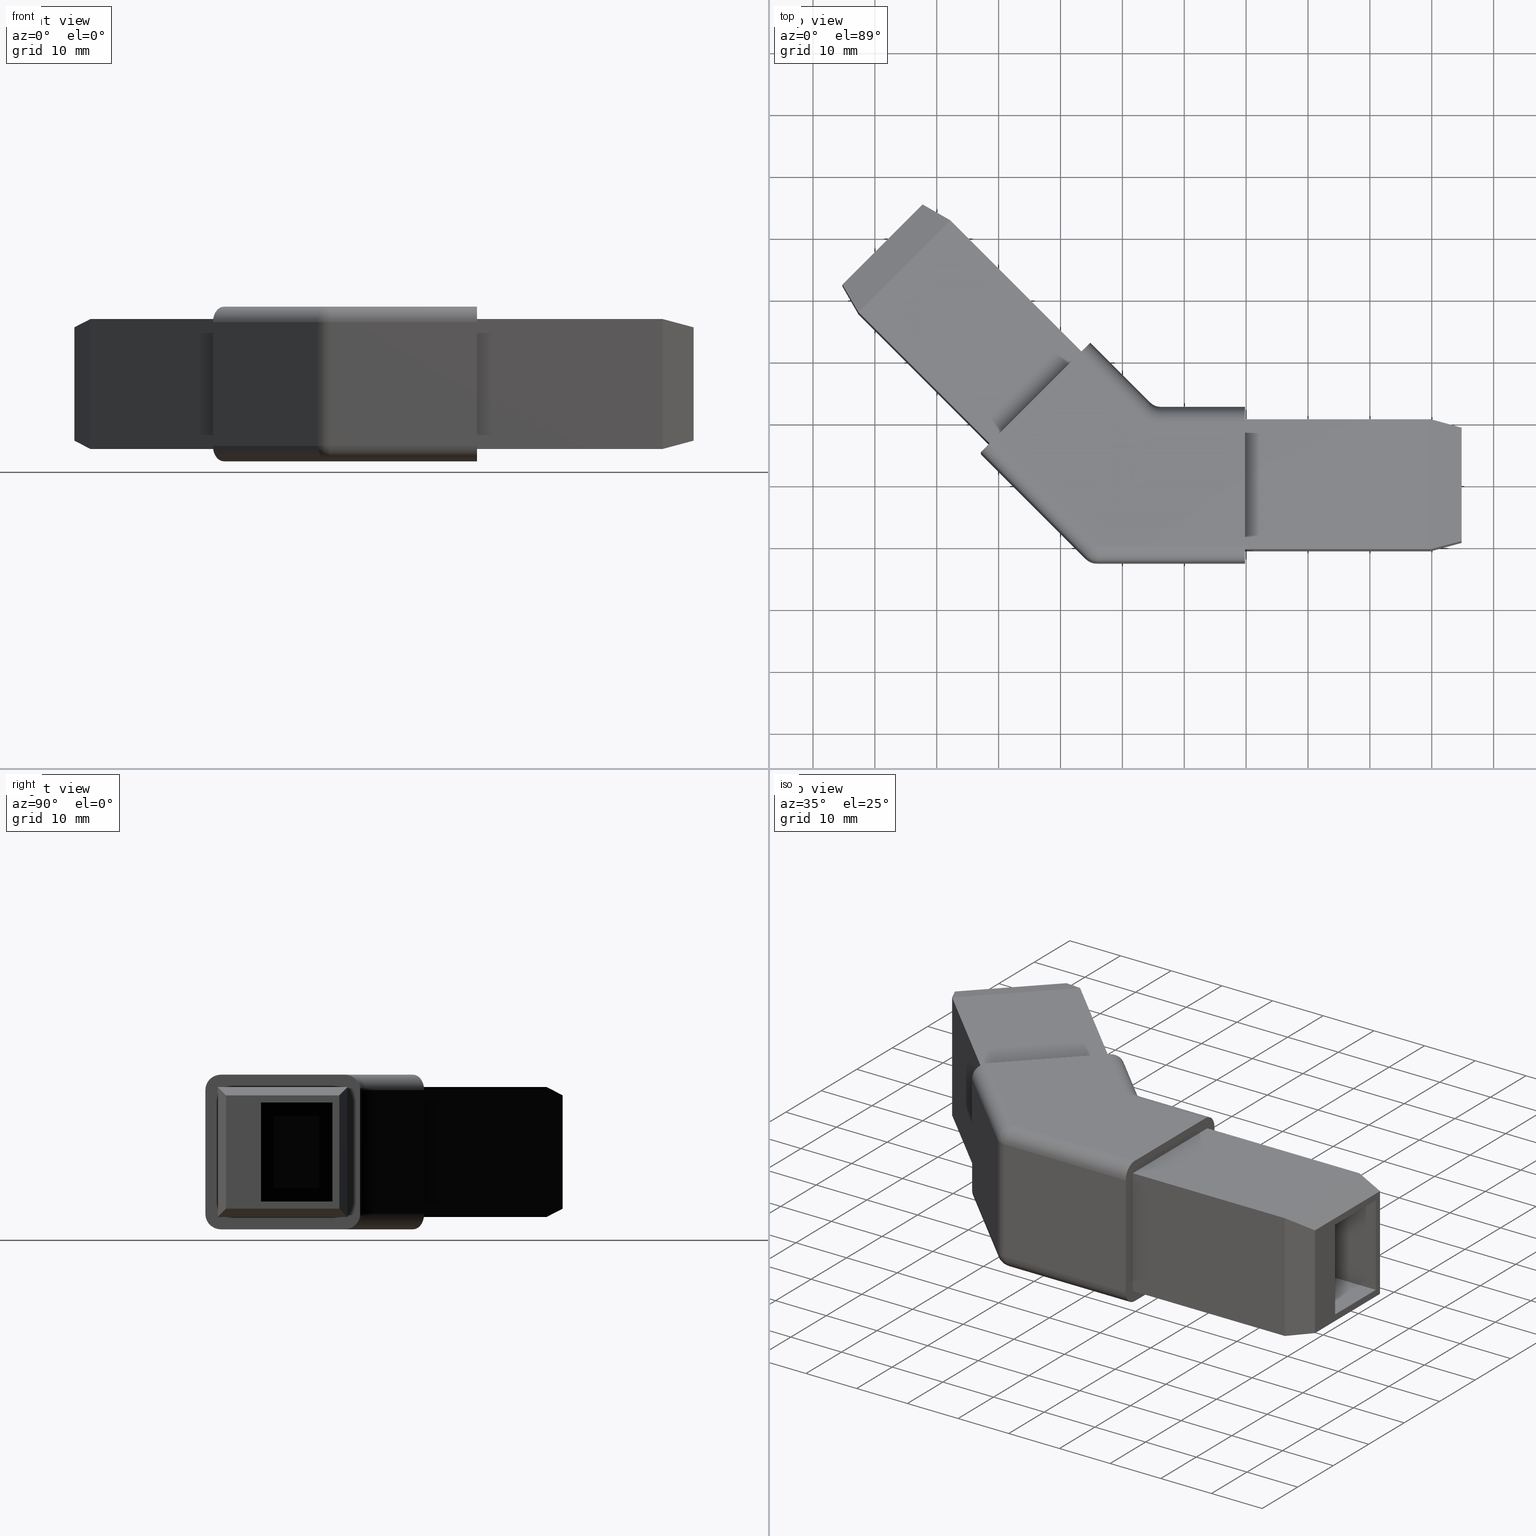
[diagram: canonical four-view strip — front | top / right | iso, engineering-drawing reading convention]
A machine part, canonical four-view strip (front | top / right | iso — engineering-drawing reading convention). The complete STEP part file that produces these views, byte-faithful:
ISO-10303-21;
HEADER;
/* Generated by software containing ST-Developer
 * from STEP Tools, Inc. (www.steptools.com) 
 */

FILE_DESCRIPTION(
/* description */ ('GIUNZ. Q25-2VA.45\X\B0 NYLON R.7039 S/RINF.'),
/* implementation_level */ '2;1');

FILE_NAME(
/* name */ 
'Q:\\Catalogo\\3_Profili e accessori MACAP\\Per Download Web e catalog
o artaceo\\ACCESSORI 25\\PAGINA 23\\DGIPD0000010-XF30506G.stp',
/* time_stamp */ '2019-11-19T11:12:06+01:00',
/* author */ ('fzagni'),
/* organization */ (''),
/* preprocessor_version */ 'ST-DEVELOPER v17.2',
/* originating_system */ 'Autodesk Inventor 2019',
/* authorisation */ '');

FILE_SCHEMA (('AUTOMOTIVE_DESIGN { 1 0 10303 214 3 1 1 }'));
ENDSEC;

DATA;
#10=MECHANICAL_DESIGN_GEOMETRIC_PRESENTATION_REPRESENTATION('',(#13),#1375);
#11=SHAPE_REPRESENTATION_RELATIONSHIP('SRR','None',#1382,#12);
#12=ADVANCED_BREP_SHAPE_REPRESENTATION('',(#14),#1374);
#13=STYLED_ITEM('',(#1391),#14);
#14=MANIFOLD_SOLID_BREP('Solido1',#821);
#15=SPHERICAL_SURFACE('',#891,2.5);
#16=SPHERICAL_SURFACE('',#902,2.5);
#17=CYLINDRICAL_SURFACE('',#869,2.5);
#18=CYLINDRICAL_SURFACE('',#876,2.5);
#19=CYLINDRICAL_SURFACE('',#877,2.5);
#20=CYLINDRICAL_SURFACE('',#879,2.5);
#21=CYLINDRICAL_SURFACE('',#881,2.5);
#22=CYLINDRICAL_SURFACE('',#885,2.5);
#23=CYLINDRICAL_SURFACE('',#888,2.5);
#24=CYLINDRICAL_SURFACE('',#897,2.5);
#25=CYLINDRICAL_SURFACE('',#899,2.5);
#26=CYLINDRICAL_SURFACE('',#909,2.5);
#27=CIRCLE('',#865,5.);
#28=CIRCLE('',#866,2.5);
#29=CIRCLE('',#867,2.5);
#30=CIRCLE('',#868,2.5);
#31=CIRCLE('',#870,2.5);
#32=CIRCLE('',#872,2.5);
#33=CIRCLE('',#873,2.5);
#34=CIRCLE('',#874,2.5);
#35=CIRCLE('',#875,5.);
#36=CIRCLE('',#878,2.5);
#37=CIRCLE('',#880,2.5);
#38=CIRCLE('',#882,2.5);
#39=CIRCLE('',#886,2.5);
#40=CIRCLE('',#887,2.5);
#41=CIRCLE('',#889,2.5);
#42=CIRCLE('',#890,2.5);
#43=CIRCLE('',#892,2.5);
#44=CIRCLE('',#895,2.5);
#45=CIRCLE('',#898,2.5);
#46=CIRCLE('',#900,2.5);
#47=CIRCLE('',#901,2.5);
#48=CIRCLE('',#903,2.5);
#49=TOROIDAL_SURFACE('',#864,5.,2.5);
#50=TOROIDAL_SURFACE('',#871,5.,2.5);
#51=FACE_BOUND('',#113,.T.);
#52=FACE_BOUND('',#123,.T.);
#53=FACE_BOUND('',#142,.T.);
#54=FACE_BOUND('',#148,.T.);
#55=FACE_OUTER_BOUND('',#103,.T.);
#56=FACE_OUTER_BOUND('',#104,.T.);
#57=FACE_OUTER_BOUND('',#105,.T.);
#58=FACE_OUTER_BOUND('',#106,.T.);
#59=FACE_OUTER_BOUND('',#107,.T.);
#60=FACE_OUTER_BOUND('',#108,.T.);
#61=FACE_OUTER_BOUND('',#109,.T.);
#62=FACE_OUTER_BOUND('',#110,.T.);
#63=FACE_OUTER_BOUND('',#111,.T.);
#64=FACE_OUTER_BOUND('',#112,.T.);
#65=FACE_OUTER_BOUND('',#114,.T.);
#66=FACE_OUTER_BOUND('',#115,.T.);
#67=FACE_OUTER_BOUND('',#116,.T.);
#68=FACE_OUTER_BOUND('',#117,.T.);
#69=FACE_OUTER_BOUND('',#118,.T.);
#70=FACE_OUTER_BOUND('',#119,.T.);
#71=FACE_OUTER_BOUND('',#120,.T.);
#72=FACE_OUTER_BOUND('',#121,.T.);
#73=FACE_OUTER_BOUND('',#122,.T.);
#74=FACE_OUTER_BOUND('',#124,.T.);
#75=FACE_OUTER_BOUND('',#125,.T.);
#76=FACE_OUTER_BOUND('',#126,.T.);
#77=FACE_OUTER_BOUND('',#127,.T.);
#78=FACE_OUTER_BOUND('',#128,.T.);
#79=FACE_OUTER_BOUND('',#129,.T.);
#80=FACE_OUTER_BOUND('',#130,.T.);
#81=FACE_OUTER_BOUND('',#131,.T.);
#82=FACE_OUTER_BOUND('',#132,.T.);
#83=FACE_OUTER_BOUND('',#133,.T.);
#84=FACE_OUTER_BOUND('',#134,.T.);
#85=FACE_OUTER_BOUND('',#135,.T.);
#86=FACE_OUTER_BOUND('',#136,.T.);
#87=FACE_OUTER_BOUND('',#137,.T.);
#88=FACE_OUTER_BOUND('',#138,.T.);
#89=FACE_OUTER_BOUND('',#139,.T.);
#90=FACE_OUTER_BOUND('',#140,.T.);
#91=FACE_OUTER_BOUND('',#141,.T.);
#92=FACE_OUTER_BOUND('',#143,.T.);
#93=FACE_OUTER_BOUND('',#144,.T.);
#94=FACE_OUTER_BOUND('',#145,.T.);
#95=FACE_OUTER_BOUND('',#146,.T.);
#96=FACE_OUTER_BOUND('',#147,.T.);
#97=FACE_OUTER_BOUND('',#149,.T.);
#98=FACE_OUTER_BOUND('',#150,.T.);
#99=FACE_OUTER_BOUND('',#151,.T.);
#100=FACE_OUTER_BOUND('',#152,.T.);
#101=FACE_OUTER_BOUND('',#153,.T.);
#102=FACE_OUTER_BOUND('',#154,.T.);
#103=EDGE_LOOP('',(#515,#516,#517,#518));
#104=EDGE_LOOP('',(#519,#520,#521,#522,#523));
#105=EDGE_LOOP('',(#524,#525,#526,#527));
#106=EDGE_LOOP('',(#528,#529,#530,#531,#532));
#107=EDGE_LOOP('',(#533,#534,#535,#536,#537,#538));
#108=EDGE_LOOP('',(#539,#540,#541,#542));
#109=EDGE_LOOP('',(#543,#544,#545,#546));
#110=EDGE_LOOP('',(#547,#548,#549,#550));
#111=EDGE_LOOP('',(#551,#552,#553,#554));
#112=EDGE_LOOP('',(#555,#556,#557,#558));
#113=EDGE_LOOP('',(#559,#560,#561,#562));
#114=EDGE_LOOP('',(#563,#564,#565,#566));
#115=EDGE_LOOP('',(#567,#568,#569,#570));
#116=EDGE_LOOP('',(#571,#572,#573,#574));
#117=EDGE_LOOP('',(#575,#576,#577,#578));
#118=EDGE_LOOP('',(#579,#580,#581,#582));
#119=EDGE_LOOP('',(#583,#584,#585,#586));
#120=EDGE_LOOP('',(#587,#588,#589,#590));
#121=EDGE_LOOP('',(#591,#592,#593,#594));
#122=EDGE_LOOP('',(#595,#596,#597,#598));
#123=EDGE_LOOP('',(#599,#600,#601,#602));
#124=EDGE_LOOP('',(#603,#604,#605,#606));
#125=EDGE_LOOP('',(#607,#608,#609,#610));
#126=EDGE_LOOP('',(#611,#612,#613,#614));
#127=EDGE_LOOP('',(#615,#616,#617,#618));
#128=EDGE_LOOP('',(#619,#620,#621,#622));
#129=EDGE_LOOP('',(#623,#624,#625,#626));
#130=EDGE_LOOP('',(#627,#628,#629,#630));
#131=EDGE_LOOP('',(#631,#632,#633,#634));
#132=EDGE_LOOP('',(#635,#636,#637,#638));
#133=EDGE_LOOP('',(#639,#640,#641,#642));
#134=EDGE_LOOP('',(#643,#644,#645,#646));
#135=EDGE_LOOP('',(#647,#648,#649,#650));
#136=EDGE_LOOP('',(#651,#652,#653,#654,#655,#656,#657));
#137=EDGE_LOOP('',(#658,#659,#660,#661));
#138=EDGE_LOOP('',(#662,#663,#664,#665));
#139=EDGE_LOOP('',(#666,#667,#668));
#140=EDGE_LOOP('',(#669,#670,#671,#672,#673,#674,#675));
#141=EDGE_LOOP('',(#676,#677,#678,#679,#680,#681,#682,#683));
#142=EDGE_LOOP('',(#684,#685,#686,#687));
#143=EDGE_LOOP('',(#688,#689,#690,#691));
#144=EDGE_LOOP('',(#692,#693,#694,#695));
#145=EDGE_LOOP('',(#696,#697,#698,#699));
#146=EDGE_LOOP('',(#700,#701,#702));
#147=EDGE_LOOP('',(#703,#704,#705,#706,#707,#708,#709,#710));
#148=EDGE_LOOP('',(#711,#712,#713,#714));
#149=EDGE_LOOP('',(#715,#716,#717,#718));
#150=EDGE_LOOP('',(#719,#720,#721,#722));
#151=EDGE_LOOP('',(#723,#724,#725,#726));
#152=EDGE_LOOP('',(#727,#728,#729,#730));
#153=EDGE_LOOP('',(#731,#732,#733,#734));
#154=EDGE_LOOP('',(#735,#736,#737,#738));
#155=LINE('',#1147,#245);
#156=LINE('',#1149,#246);
#157=LINE('',#1151,#247);
#158=LINE('',#1152,#248);
#159=LINE('',#1156,#249);
#160=LINE('',#1158,#250);
#161=LINE('',#1159,#251);
#162=LINE('',#1160,#252);
#163=LINE('',#1163,#253);
#164=LINE('',#1164,#254);
#165=LINE('',#1167,#255);
#166=LINE('',#1169,#256);
#167=LINE('',#1170,#257);
#168=LINE('',#1172,#258);
#169=LINE('',#1174,#259);
#170=LINE('',#1176,#260);
#171=LINE('',#1177,#261);
#172=LINE('',#1181,#262);
#173=LINE('',#1182,#263);
#174=LINE('',#1183,#264);
#175=LINE('',#1185,#265);
#176=LINE('',#1187,#266);
#177=LINE('',#1191,#267);
#178=LINE('',#1193,#268);
#179=LINE('',#1195,#269);
#180=LINE('',#1196,#270);
#181=LINE('',#1199,#271);
#182=LINE('',#1201,#272);
#183=LINE('',#1202,#273);
#184=LINE('',#1205,#274);
#185=LINE('',#1206,#275);
#186=LINE('',#1209,#276);
#187=LINE('',#1210,#277);
#188=LINE('',#1213,#278);
#189=LINE('',#1215,#279);
#190=LINE('',#1216,#280);
#191=LINE('',#1218,#281);
#192=LINE('',#1221,#282);
#193=LINE('',#1222,#283);
#194=LINE('',#1226,#284);
#195=LINE('',#1228,#285);
#196=LINE('',#1230,#286);
#197=LINE('',#1231,#287);
#198=LINE('',#1234,#288);
#199=LINE('',#1236,#289);
#200=LINE('',#1237,#290);
#201=LINE('',#1240,#291);
#202=LINE('',#1242,#292);
#203=LINE('',#1243,#293);
#204=LINE('',#1246,#294);
#205=LINE('',#1247,#295);
#206=LINE('',#1250,#296);
#207=LINE('',#1251,#297);
#208=LINE('',#1254,#298);
#209=LINE('',#1256,#299);
#210=LINE('',#1257,#300);
#211=LINE('',#1259,#301);
#212=LINE('',#1261,#302);
#213=LINE('',#1275,#303);
#214=LINE('',#1276,#304);
#215=LINE('',#1287,#305);
#216=LINE('',#1288,#306);
#217=LINE('',#1293,#307);
#218=LINE('',#1294,#308);
#219=LINE('',#1299,#309);
#220=LINE('',#1300,#310);
#221=LINE('',#1305,#311);
#222=LINE('',#1306,#312);
#223=LINE('',#1308,#313);
#224=LINE('',#1311,#314);
#225=LINE('',#1313,#315);
#226=LINE('',#1315,#316);
#227=LINE('',#1316,#317);
#228=LINE('',#1322,#318);
#229=LINE('',#1325,#319);
#230=LINE('',#1330,#320);
#231=LINE('',#1333,#321);
#232=LINE('',#1337,#322);
#233=LINE('',#1338,#323);
#234=LINE('',#1341,#324);
#235=LINE('',#1343,#325);
#236=LINE('',#1344,#326);
#237=LINE('',#1347,#327);
#238=LINE('',#1348,#328);
#239=LINE('',#1356,#329);
#240=LINE('',#1360,#330);
#241=LINE('',#1362,#331);
#242=LINE('',#1363,#332);
#243=LINE('',#1365,#333);
#244=LINE('',#1367,#334);
#245=VECTOR('',#915,10.);
#246=VECTOR('',#916,10.);
#247=VECTOR('',#917,10.);
#248=VECTOR('',#918,10.);
#249=VECTOR('',#921,10.);
#250=VECTOR('',#922,10.);
#251=VECTOR('',#923,10.);
#252=VECTOR('',#924,10.);
#253=VECTOR('',#927,10.);
#254=VECTOR('',#928,10.);
#255=VECTOR('',#931,10.);
#256=VECTOR('',#932,10.);
#257=VECTOR('',#933,10.);
#258=VECTOR('',#936,10.);
#259=VECTOR('',#937,10.);
#260=VECTOR('',#938,10.);
#261=VECTOR('',#939,10.);
#262=VECTOR('',#942,10.);
#263=VECTOR('',#943,10.);
#264=VECTOR('',#944,10.);
#265=VECTOR('',#947,10.);
#266=VECTOR('',#950,10.);
#267=VECTOR('',#953,10.);
#268=VECTOR('',#954,10.);
#269=VECTOR('',#955,10.);
#270=VECTOR('',#956,10.);
#271=VECTOR('',#959,10.);
#272=VECTOR('',#960,10.);
#273=VECTOR('',#961,10.);
#274=VECTOR('',#964,10.);
#275=VECTOR('',#965,10.);
#276=VECTOR('',#968,10.);
#277=VECTOR('',#969,10.);
#278=VECTOR('',#972,10.);
#279=VECTOR('',#973,10.);
#280=VECTOR('',#974,10.);
#281=VECTOR('',#977,10.);
#282=VECTOR('',#980,10.);
#283=VECTOR('',#981,10.);
#284=VECTOR('',#984,10.);
#285=VECTOR('',#985,10.);
#286=VECTOR('',#986,10.);
#287=VECTOR('',#987,10.);
#288=VECTOR('',#990,10.);
#289=VECTOR('',#991,10.);
#290=VECTOR('',#992,10.);
#291=VECTOR('',#995,10.);
#292=VECTOR('',#996,10.);
#293=VECTOR('',#997,10.);
#294=VECTOR('',#1000,10.);
#295=VECTOR('',#1001,10.);
#296=VECTOR('',#1004,10.);
#297=VECTOR('',#1005,10.);
#298=VECTOR('',#1008,10.);
#299=VECTOR('',#1009,10.);
#300=VECTOR('',#1010,10.);
#301=VECTOR('',#1013,10.);
#302=VECTOR('',#1016,10.);
#303=VECTOR('',#1031,10.);
#304=VECTOR('',#1032,10.);
#305=VECTOR('',#1045,10.);
#306=VECTOR('',#1046,10.);
#307=VECTOR('',#1051,10.);
#308=VECTOR('',#1052,10.);
#309=VECTOR('',#1057,10.);
#310=VECTOR('',#1058,10.);
#311=VECTOR('',#1063,10.);
#312=VECTOR('',#1064,10.);
#313=VECTOR('',#1067,10.);
#314=VECTOR('',#1070,10.);
#315=VECTOR('',#1071,10.);
#316=VECTOR('',#1072,10.);
#317=VECTOR('',#1073,10.);
#318=VECTOR('',#1078,10.);
#319=VECTOR('',#1081,10.);
#320=VECTOR('',#1086,10.);
#321=VECTOR('',#1089,10.);
#322=VECTOR('',#1096,10.);
#323=VECTOR('',#1097,10.);
#324=VECTOR('',#1100,10.);
#325=VECTOR('',#1103,10.);
#326=VECTOR('',#1104,10.);
#327=VECTOR('',#1107,10.);
#328=VECTOR('',#1108,10.);
#329=VECTOR('',#1119,10.);
#330=VECTOR('',#1126,10.);
#331=VECTOR('',#1127,10.);
#332=VECTOR('',#1128,10.);
#333=VECTOR('',#1131,10.);
#334=VECTOR('',#1134,10.);
#335=VERTEX_POINT('',#1145);
#336=VERTEX_POINT('',#1146);
#337=VERTEX_POINT('',#1148);
#338=VERTEX_POINT('',#1150);
#339=VERTEX_POINT('',#1154);
#340=VERTEX_POINT('',#1155);
#341=VERTEX_POINT('',#1157);
#342=VERTEX_POINT('',#1162);
#343=VERTEX_POINT('',#1166);
#344=VERTEX_POINT('',#1168);
#345=VERTEX_POINT('',#1173);
#346=VERTEX_POINT('',#1175);
#347=VERTEX_POINT('',#1179);
#348=VERTEX_POINT('',#1180);
#349=VERTEX_POINT('',#1189);
#350=VERTEX_POINT('',#1190);
#351=VERTEX_POINT('',#1192);
#352=VERTEX_POINT('',#1194);
#353=VERTEX_POINT('',#1198);
#354=VERTEX_POINT('',#1200);
#355=VERTEX_POINT('',#1204);
#356=VERTEX_POINT('',#1208);
#357=VERTEX_POINT('',#1212);
#358=VERTEX_POINT('',#1214);
#359=VERTEX_POINT('',#1220);
#360=VERTEX_POINT('',#1224);
#361=VERTEX_POINT('',#1225);
#362=VERTEX_POINT('',#1227);
#363=VERTEX_POINT('',#1229);
#364=VERTEX_POINT('',#1233);
#365=VERTEX_POINT('',#1235);
#366=VERTEX_POINT('',#1239);
#367=VERTEX_POINT('',#1241);
#368=VERTEX_POINT('',#1245);
#369=VERTEX_POINT('',#1249);
#370=VERTEX_POINT('',#1253);
#371=VERTEX_POINT('',#1255);
#372=VERTEX_POINT('',#1263);
#373=VERTEX_POINT('',#1264);
#374=VERTEX_POINT('',#1266);
#375=VERTEX_POINT('',#1268);
#376=VERTEX_POINT('',#1272);
#377=VERTEX_POINT('',#1273);
#378=VERTEX_POINT('',#1278);
#379=VERTEX_POINT('',#1279);
#380=VERTEX_POINT('',#1281);
#381=VERTEX_POINT('',#1283);
#382=VERTEX_POINT('',#1290);
#383=VERTEX_POINT('',#1291);
#384=VERTEX_POINT('',#1296);
#385=VERTEX_POINT('',#1297);
#386=VERTEX_POINT('',#1302);
#387=VERTEX_POINT('',#1303);
#388=VERTEX_POINT('',#1310);
#389=VERTEX_POINT('',#1312);
#390=VERTEX_POINT('',#1314);
#391=VERTEX_POINT('',#1318);
#392=VERTEX_POINT('',#1319);
#393=VERTEX_POINT('',#1321);
#394=VERTEX_POINT('',#1323);
#395=VERTEX_POINT('',#1327);
#396=VERTEX_POINT('',#1328);
#397=VERTEX_POINT('',#1331);
#398=VERTEX_POINT('',#1340);
#399=VERTEX_POINT('',#1346);
#400=VERTEX_POINT('',#1352);
#401=VERTEX_POINT('',#1354);
#402=VERTEX_POINT('',#1361);
#403=EDGE_CURVE('',#335,#336,#155,.T.);
#404=EDGE_CURVE('',#337,#336,#156,.T.);
#405=EDGE_CURVE('',#338,#337,#157,.T.);
#406=EDGE_CURVE('',#335,#338,#158,.T.);
#407=EDGE_CURVE('',#339,#340,#159,.T.);
#408=EDGE_CURVE('',#341,#339,#160,.T.);
#409=EDGE_CURVE('',#341,#335,#161,.T.);
#410=EDGE_CURVE('',#340,#338,#162,.T.);
#411=EDGE_CURVE('',#340,#342,#163,.T.);
#412=EDGE_CURVE('',#337,#342,#164,.T.);
#413=EDGE_CURVE('',#342,#343,#165,.T.);
#414=EDGE_CURVE('',#336,#344,#166,.T.);
#415=EDGE_CURVE('',#344,#343,#167,.T.);
#416=EDGE_CURVE('',#343,#339,#168,.T.);
#417=EDGE_CURVE('',#345,#344,#169,.T.);
#418=EDGE_CURVE('',#346,#345,#170,.T.);
#419=EDGE_CURVE('',#341,#346,#171,.T.);
#420=EDGE_CURVE('',#347,#348,#172,.T.);
#421=EDGE_CURVE('',#347,#336,#173,.T.);
#422=EDGE_CURVE('',#348,#335,#174,.T.);
#423=EDGE_CURVE('',#348,#346,#175,.T.);
#424=EDGE_CURVE('',#345,#347,#176,.T.);
#425=EDGE_CURVE('',#349,#350,#177,.T.);
#426=EDGE_CURVE('',#350,#351,#178,.T.);
#427=EDGE_CURVE('',#351,#352,#179,.T.);
#428=EDGE_CURVE('',#352,#349,#180,.T.);
#429=EDGE_CURVE('',#353,#350,#181,.T.);
#430=EDGE_CURVE('',#354,#353,#182,.T.);
#431=EDGE_CURVE('',#351,#354,#183,.T.);
#432=EDGE_CURVE('',#349,#355,#184,.T.);
#433=EDGE_CURVE('',#353,#355,#185,.T.);
#434=EDGE_CURVE('',#354,#356,#186,.T.);
#435=EDGE_CURVE('',#356,#352,#187,.T.);
#436=EDGE_CURVE('',#357,#356,#188,.T.);
#437=EDGE_CURVE('',#358,#357,#189,.T.);
#438=EDGE_CURVE('',#358,#352,#190,.T.);
#439=EDGE_CURVE('',#355,#356,#191,.T.);
#440=EDGE_CURVE('',#359,#355,#192,.T.);
#441=EDGE_CURVE('',#357,#359,#193,.T.);
#442=EDGE_CURVE('',#360,#361,#194,.T.);
#443=EDGE_CURVE('',#361,#362,#195,.T.);
#444=EDGE_CURVE('',#362,#363,#196,.T.);
#445=EDGE_CURVE('',#363,#360,#197,.T.);
#446=EDGE_CURVE('',#364,#363,#198,.T.);
#447=EDGE_CURVE('',#365,#364,#199,.T.);
#448=EDGE_CURVE('',#365,#360,#200,.T.);
#449=EDGE_CURVE('',#362,#366,#201,.T.);
#450=EDGE_CURVE('',#366,#367,#202,.T.);
#451=EDGE_CURVE('',#367,#363,#203,.T.);
#452=EDGE_CURVE('',#368,#361,#204,.T.);
#453=EDGE_CURVE('',#366,#368,#205,.T.);
#454=EDGE_CURVE('',#368,#369,#206,.T.);
#455=EDGE_CURVE('',#369,#367,#207,.T.);
#456=EDGE_CURVE('',#370,#369,#208,.T.);
#457=EDGE_CURVE('',#371,#370,#209,.T.);
#458=EDGE_CURVE('',#371,#367,#210,.T.);
#459=EDGE_CURVE('',#360,#369,#211,.T.);
#460=EDGE_CURVE('',#370,#365,#212,.T.);
#461=EDGE_CURVE('',#372,#373,#27,.T.);
#462=EDGE_CURVE('',#374,#373,#28,.T.);
#463=EDGE_CURVE('',#375,#374,#29,.F.);
#464=EDGE_CURVE('',#372,#375,#30,.T.);
#465=EDGE_CURVE('',#376,#377,#31,.T.);
#466=EDGE_CURVE('',#377,#374,#213,.T.);
#467=EDGE_CURVE('',#373,#376,#214,.T.);
#468=EDGE_CURVE('',#378,#379,#32,.T.);
#469=EDGE_CURVE('',#380,#378,#33,.F.);
#470=EDGE_CURVE('',#381,#380,#34,.T.);
#471=EDGE_CURVE('',#381,#379,#35,.T.);
#472=EDGE_CURVE('',#378,#375,#215,.T.);
#473=EDGE_CURVE('',#374,#380,#216,.T.);
#474=EDGE_CURVE('',#382,#383,#36,.T.);
#475=EDGE_CURVE('',#383,#381,#217,.T.);
#476=EDGE_CURVE('',#380,#382,#218,.T.);
#477=EDGE_CURVE('',#384,#385,#37,.T.);
#478=EDGE_CURVE('',#385,#378,#219,.T.);
#479=EDGE_CURVE('',#379,#384,#220,.T.);
#480=EDGE_CURVE('',#386,#387,#38,.T.);
#481=EDGE_CURVE('',#387,#372,#221,.T.);
#482=EDGE_CURVE('',#375,#386,#222,.T.);
#483=EDGE_CURVE('',#377,#382,#223,.T.);
#484=EDGE_CURVE('',#387,#388,#224,.T.);
#485=EDGE_CURVE('',#389,#388,#225,.T.);
#486=EDGE_CURVE('',#390,#389,#226,.T.);
#487=EDGE_CURVE('',#390,#376,#227,.T.);
#488=EDGE_CURVE('',#391,#392,#39,.T.);
#489=EDGE_CURVE('',#392,#393,#228,.T.);
#490=EDGE_CURVE('',#393,#394,#40,.T.);
#491=EDGE_CURVE('',#394,#391,#229,.T.);
#492=EDGE_CURVE('',#395,#396,#41,.T.);
#493=EDGE_CURVE('',#396,#394,#230,.T.);
#494=EDGE_CURVE('',#394,#397,#42,.T.);
#495=EDGE_CURVE('',#397,#395,#231,.T.);
#496=EDGE_CURVE('',#393,#397,#43,.T.);
#497=EDGE_CURVE('',#383,#391,#232,.T.);
#498=EDGE_CURVE('',#396,#384,#233,.T.);
#499=EDGE_CURVE('',#398,#395,#234,.T.);
#500=EDGE_CURVE('',#388,#398,#44,.T.);
#501=EDGE_CURVE('',#386,#385,#235,.T.);
#502=EDGE_CURVE('',#364,#371,#236,.T.);
#503=EDGE_CURVE('',#399,#397,#237,.T.);
#504=EDGE_CURVE('',#398,#399,#238,.T.);
#505=EDGE_CURVE('',#399,#389,#45,.T.);
#506=EDGE_CURVE('',#400,#390,#46,.T.);
#507=EDGE_CURVE('',#389,#401,#47,.T.);
#508=EDGE_CURVE('',#401,#400,#239,.T.);
#509=EDGE_CURVE('',#399,#401,#48,.T.);
#510=EDGE_CURVE('',#400,#392,#240,.T.);
#511=EDGE_CURVE('',#359,#402,#241,.T.);
#512=EDGE_CURVE('',#402,#358,#242,.T.);
#513=EDGE_CURVE('',#401,#393,#243,.T.);
#514=EDGE_CURVE('',#402,#349,#244,.T.);
#515=ORIENTED_EDGE('',*,*,#403,.T.);
#516=ORIENTED_EDGE('',*,*,#404,.F.);
#517=ORIENTED_EDGE('',*,*,#405,.F.);
#518=ORIENTED_EDGE('',*,*,#406,.F.);
#519=ORIENTED_EDGE('',*,*,#407,.F.);
#520=ORIENTED_EDGE('',*,*,#408,.F.);
#521=ORIENTED_EDGE('',*,*,#409,.T.);
#522=ORIENTED_EDGE('',*,*,#406,.T.);
#523=ORIENTED_EDGE('',*,*,#410,.F.);
#524=ORIENTED_EDGE('',*,*,#411,.F.);
#525=ORIENTED_EDGE('',*,*,#410,.T.);
#526=ORIENTED_EDGE('',*,*,#405,.T.);
#527=ORIENTED_EDGE('',*,*,#412,.T.);
#528=ORIENTED_EDGE('',*,*,#413,.F.);
#529=ORIENTED_EDGE('',*,*,#412,.F.);
#530=ORIENTED_EDGE('',*,*,#404,.T.);
#531=ORIENTED_EDGE('',*,*,#414,.T.);
#532=ORIENTED_EDGE('',*,*,#415,.T.);
#533=ORIENTED_EDGE('',*,*,#416,.F.);
#534=ORIENTED_EDGE('',*,*,#415,.F.);
#535=ORIENTED_EDGE('',*,*,#417,.F.);
#536=ORIENTED_EDGE('',*,*,#418,.F.);
#537=ORIENTED_EDGE('',*,*,#419,.F.);
#538=ORIENTED_EDGE('',*,*,#408,.T.);
#539=ORIENTED_EDGE('',*,*,#420,.F.);
#540=ORIENTED_EDGE('',*,*,#421,.T.);
#541=ORIENTED_EDGE('',*,*,#403,.F.);
#542=ORIENTED_EDGE('',*,*,#422,.F.);
#543=ORIENTED_EDGE('',*,*,#423,.F.);
#544=ORIENTED_EDGE('',*,*,#422,.T.);
#545=ORIENTED_EDGE('',*,*,#409,.F.);
#546=ORIENTED_EDGE('',*,*,#419,.T.);
#547=ORIENTED_EDGE('',*,*,#424,.F.);
#548=ORIENTED_EDGE('',*,*,#417,.T.);
#549=ORIENTED_EDGE('',*,*,#414,.F.);
#550=ORIENTED_EDGE('',*,*,#421,.F.);
#551=ORIENTED_EDGE('',*,*,#425,.T.);
#552=ORIENTED_EDGE('',*,*,#426,.T.);
#553=ORIENTED_EDGE('',*,*,#427,.T.);
#554=ORIENTED_EDGE('',*,*,#428,.T.);
#555=ORIENTED_EDGE('',*,*,#426,.F.);
#556=ORIENTED_EDGE('',*,*,#429,.F.);
#557=ORIENTED_EDGE('',*,*,#430,.F.);
#558=ORIENTED_EDGE('',*,*,#431,.F.);
#559=ORIENTED_EDGE('',*,*,#413,.T.);
#560=ORIENTED_EDGE('',*,*,#416,.T.);
#561=ORIENTED_EDGE('',*,*,#407,.T.);
#562=ORIENTED_EDGE('',*,*,#411,.T.);
#563=ORIENTED_EDGE('',*,*,#425,.F.);
#564=ORIENTED_EDGE('',*,*,#432,.T.);
#565=ORIENTED_EDGE('',*,*,#433,.F.);
#566=ORIENTED_EDGE('',*,*,#429,.T.);
#567=ORIENTED_EDGE('',*,*,#427,.F.);
#568=ORIENTED_EDGE('',*,*,#431,.T.);
#569=ORIENTED_EDGE('',*,*,#434,.T.);
#570=ORIENTED_EDGE('',*,*,#435,.T.);
#571=ORIENTED_EDGE('',*,*,#435,.F.);
#572=ORIENTED_EDGE('',*,*,#436,.F.);
#573=ORIENTED_EDGE('',*,*,#437,.F.);
#574=ORIENTED_EDGE('',*,*,#438,.T.);
#575=ORIENTED_EDGE('',*,*,#434,.F.);
#576=ORIENTED_EDGE('',*,*,#430,.T.);
#577=ORIENTED_EDGE('',*,*,#433,.T.);
#578=ORIENTED_EDGE('',*,*,#439,.T.);
#579=ORIENTED_EDGE('',*,*,#439,.F.);
#580=ORIENTED_EDGE('',*,*,#440,.F.);
#581=ORIENTED_EDGE('',*,*,#441,.F.);
#582=ORIENTED_EDGE('',*,*,#436,.T.);
#583=ORIENTED_EDGE('',*,*,#442,.T.);
#584=ORIENTED_EDGE('',*,*,#443,.T.);
#585=ORIENTED_EDGE('',*,*,#444,.T.);
#586=ORIENTED_EDGE('',*,*,#445,.T.);
#587=ORIENTED_EDGE('',*,*,#445,.F.);
#588=ORIENTED_EDGE('',*,*,#446,.F.);
#589=ORIENTED_EDGE('',*,*,#447,.F.);
#590=ORIENTED_EDGE('',*,*,#448,.T.);
#591=ORIENTED_EDGE('',*,*,#444,.F.);
#592=ORIENTED_EDGE('',*,*,#449,.T.);
#593=ORIENTED_EDGE('',*,*,#450,.T.);
#594=ORIENTED_EDGE('',*,*,#451,.T.);
#595=ORIENTED_EDGE('',*,*,#443,.F.);
#596=ORIENTED_EDGE('',*,*,#452,.F.);
#597=ORIENTED_EDGE('',*,*,#453,.F.);
#598=ORIENTED_EDGE('',*,*,#449,.F.);
#599=ORIENTED_EDGE('',*,*,#418,.T.);
#600=ORIENTED_EDGE('',*,*,#424,.T.);
#601=ORIENTED_EDGE('',*,*,#420,.T.);
#602=ORIENTED_EDGE('',*,*,#423,.T.);
#603=ORIENTED_EDGE('',*,*,#450,.F.);
#604=ORIENTED_EDGE('',*,*,#453,.T.);
#605=ORIENTED_EDGE('',*,*,#454,.T.);
#606=ORIENTED_EDGE('',*,*,#455,.T.);
#607=ORIENTED_EDGE('',*,*,#455,.F.);
#608=ORIENTED_EDGE('',*,*,#456,.F.);
#609=ORIENTED_EDGE('',*,*,#457,.F.);
#610=ORIENTED_EDGE('',*,*,#458,.T.);
#611=ORIENTED_EDGE('',*,*,#442,.F.);
#612=ORIENTED_EDGE('',*,*,#459,.T.);
#613=ORIENTED_EDGE('',*,*,#454,.F.);
#614=ORIENTED_EDGE('',*,*,#452,.T.);
#615=ORIENTED_EDGE('',*,*,#459,.F.);
#616=ORIENTED_EDGE('',*,*,#448,.F.);
#617=ORIENTED_EDGE('',*,*,#460,.F.);
#618=ORIENTED_EDGE('',*,*,#456,.T.);
#619=ORIENTED_EDGE('',*,*,#461,.T.);
#620=ORIENTED_EDGE('',*,*,#462,.F.);
#621=ORIENTED_EDGE('',*,*,#463,.F.);
#622=ORIENTED_EDGE('',*,*,#464,.F.);
#623=ORIENTED_EDGE('',*,*,#465,.T.);
#624=ORIENTED_EDGE('',*,*,#466,.T.);
#625=ORIENTED_EDGE('',*,*,#462,.T.);
#626=ORIENTED_EDGE('',*,*,#467,.T.);
#627=ORIENTED_EDGE('',*,*,#468,.F.);
#628=ORIENTED_EDGE('',*,*,#469,.F.);
#629=ORIENTED_EDGE('',*,*,#470,.F.);
#630=ORIENTED_EDGE('',*,*,#471,.T.);
#631=ORIENTED_EDGE('',*,*,#469,.T.);
#632=ORIENTED_EDGE('',*,*,#472,.T.);
#633=ORIENTED_EDGE('',*,*,#463,.T.);
#634=ORIENTED_EDGE('',*,*,#473,.T.);
#635=ORIENTED_EDGE('',*,*,#474,.T.);
#636=ORIENTED_EDGE('',*,*,#475,.T.);
#637=ORIENTED_EDGE('',*,*,#470,.T.);
#638=ORIENTED_EDGE('',*,*,#476,.T.);
#639=ORIENTED_EDGE('',*,*,#477,.T.);
#640=ORIENTED_EDGE('',*,*,#478,.T.);
#641=ORIENTED_EDGE('',*,*,#468,.T.);
#642=ORIENTED_EDGE('',*,*,#479,.T.);
#643=ORIENTED_EDGE('',*,*,#480,.T.);
#644=ORIENTED_EDGE('',*,*,#481,.T.);
#645=ORIENTED_EDGE('',*,*,#464,.T.);
#646=ORIENTED_EDGE('',*,*,#482,.T.);
#647=ORIENTED_EDGE('',*,*,#476,.F.);
#648=ORIENTED_EDGE('',*,*,#473,.F.);
#649=ORIENTED_EDGE('',*,*,#466,.F.);
#650=ORIENTED_EDGE('',*,*,#483,.T.);
#651=ORIENTED_EDGE('',*,*,#467,.F.);
#652=ORIENTED_EDGE('',*,*,#461,.F.);
#653=ORIENTED_EDGE('',*,*,#481,.F.);
#654=ORIENTED_EDGE('',*,*,#484,.T.);
#655=ORIENTED_EDGE('',*,*,#485,.F.);
#656=ORIENTED_EDGE('',*,*,#486,.F.);
#657=ORIENTED_EDGE('',*,*,#487,.T.);
#658=ORIENTED_EDGE('',*,*,#488,.T.);
#659=ORIENTED_EDGE('',*,*,#489,.T.);
#660=ORIENTED_EDGE('',*,*,#490,.T.);
#661=ORIENTED_EDGE('',*,*,#491,.T.);
#662=ORIENTED_EDGE('',*,*,#492,.T.);
#663=ORIENTED_EDGE('',*,*,#493,.T.);
#664=ORIENTED_EDGE('',*,*,#494,.T.);
#665=ORIENTED_EDGE('',*,*,#495,.T.);
#666=ORIENTED_EDGE('',*,*,#494,.F.);
#667=ORIENTED_EDGE('',*,*,#490,.F.);
#668=ORIENTED_EDGE('',*,*,#496,.T.);
#669=ORIENTED_EDGE('',*,*,#475,.F.);
#670=ORIENTED_EDGE('',*,*,#497,.T.);
#671=ORIENTED_EDGE('',*,*,#491,.F.);
#672=ORIENTED_EDGE('',*,*,#493,.F.);
#673=ORIENTED_EDGE('',*,*,#498,.T.);
#674=ORIENTED_EDGE('',*,*,#479,.F.);
#675=ORIENTED_EDGE('',*,*,#471,.F.);
#676=ORIENTED_EDGE('',*,*,#477,.F.);
#677=ORIENTED_EDGE('',*,*,#498,.F.);
#678=ORIENTED_EDGE('',*,*,#492,.F.);
#679=ORIENTED_EDGE('',*,*,#499,.F.);
#680=ORIENTED_EDGE('',*,*,#500,.F.);
#681=ORIENTED_EDGE('',*,*,#484,.F.);
#682=ORIENTED_EDGE('',*,*,#480,.F.);
#683=ORIENTED_EDGE('',*,*,#501,.T.);
#684=ORIENTED_EDGE('',*,*,#460,.T.);
#685=ORIENTED_EDGE('',*,*,#447,.T.);
#686=ORIENTED_EDGE('',*,*,#502,.T.);
#687=ORIENTED_EDGE('',*,*,#457,.T.);
#688=ORIENTED_EDGE('',*,*,#495,.F.);
#689=ORIENTED_EDGE('',*,*,#503,.F.);
#690=ORIENTED_EDGE('',*,*,#504,.F.);
#691=ORIENTED_EDGE('',*,*,#499,.T.);
#692=ORIENTED_EDGE('',*,*,#500,.T.);
#693=ORIENTED_EDGE('',*,*,#504,.T.);
#694=ORIENTED_EDGE('',*,*,#505,.T.);
#695=ORIENTED_EDGE('',*,*,#485,.T.);
#696=ORIENTED_EDGE('',*,*,#506,.T.);
#697=ORIENTED_EDGE('',*,*,#486,.T.);
#698=ORIENTED_EDGE('',*,*,#507,.T.);
#699=ORIENTED_EDGE('',*,*,#508,.T.);
#700=ORIENTED_EDGE('',*,*,#507,.F.);
#701=ORIENTED_EDGE('',*,*,#505,.F.);
#702=ORIENTED_EDGE('',*,*,#509,.T.);
#703=ORIENTED_EDGE('',*,*,#474,.F.);
#704=ORIENTED_EDGE('',*,*,#483,.F.);
#705=ORIENTED_EDGE('',*,*,#465,.F.);
#706=ORIENTED_EDGE('',*,*,#487,.F.);
#707=ORIENTED_EDGE('',*,*,#506,.F.);
#708=ORIENTED_EDGE('',*,*,#510,.T.);
#709=ORIENTED_EDGE('',*,*,#488,.F.);
#710=ORIENTED_EDGE('',*,*,#497,.F.);
#711=ORIENTED_EDGE('',*,*,#441,.T.);
#712=ORIENTED_EDGE('',*,*,#511,.T.);
#713=ORIENTED_EDGE('',*,*,#512,.T.);
#714=ORIENTED_EDGE('',*,*,#437,.T.);
#715=ORIENTED_EDGE('',*,*,#489,.F.);
#716=ORIENTED_EDGE('',*,*,#510,.F.);
#717=ORIENTED_EDGE('',*,*,#508,.F.);
#718=ORIENTED_EDGE('',*,*,#513,.T.);
#719=ORIENTED_EDGE('',*,*,#432,.F.);
#720=ORIENTED_EDGE('',*,*,#514,.F.);
#721=ORIENTED_EDGE('',*,*,#511,.F.);
#722=ORIENTED_EDGE('',*,*,#440,.T.);
#723=ORIENTED_EDGE('',*,*,#428,.F.);
#724=ORIENTED_EDGE('',*,*,#438,.F.);
#725=ORIENTED_EDGE('',*,*,#512,.F.);
#726=ORIENTED_EDGE('',*,*,#514,.T.);
#727=ORIENTED_EDGE('',*,*,#451,.F.);
#728=ORIENTED_EDGE('',*,*,#458,.F.);
#729=ORIENTED_EDGE('',*,*,#502,.F.);
#730=ORIENTED_EDGE('',*,*,#446,.T.);
#731=ORIENTED_EDGE('',*,*,#496,.F.);
#732=ORIENTED_EDGE('',*,*,#513,.F.);
#733=ORIENTED_EDGE('',*,*,#509,.F.);
#734=ORIENTED_EDGE('',*,*,#503,.T.);
#735=ORIENTED_EDGE('',*,*,#478,.F.);
#736=ORIENTED_EDGE('',*,*,#501,.F.);
#737=ORIENTED_EDGE('',*,*,#482,.F.);
#738=ORIENTED_EDGE('',*,*,#472,.F.);
#739=PLANE('',#841);
#740=PLANE('',#842);
#741=PLANE('',#843);
#742=PLANE('',#844);
#743=PLANE('',#845);
#744=PLANE('',#846);
#745=PLANE('',#847);
#746=PLANE('',#848);
#747=PLANE('',#849);
#748=PLANE('',#850);
#749=PLANE('',#851);
#750=PLANE('',#852);
#751=PLANE('',#853);
#752=PLANE('',#854);
#753=PLANE('',#855);
#754=PLANE('',#856);
#755=PLANE('',#857);
#756=PLANE('',#858);
#757=PLANE('',#859);
#758=PLANE('',#860);
#759=PLANE('',#861);
#760=PLANE('',#862);
#761=PLANE('',#863);
#762=PLANE('',#883);
#763=PLANE('',#884);
#764=PLANE('',#893);
#765=PLANE('',#894);
#766=PLANE('',#896);
#767=PLANE('',#904);
#768=PLANE('',#905);
#769=PLANE('',#906);
#770=PLANE('',#907);
#771=PLANE('',#908);
#772=PLANE('',#910);
#773=ADVANCED_FACE('',(#55),#739,.T.);
#774=ADVANCED_FACE('',(#56),#740,.F.);
#775=ADVANCED_FACE('',(#57),#741,.F.);
#776=ADVANCED_FACE('',(#58),#742,.F.);
#777=ADVANCED_FACE('',(#59),#743,.F.);
#778=ADVANCED_FACE('',(#60),#744,.F.);
#779=ADVANCED_FACE('',(#61),#745,.F.);
#780=ADVANCED_FACE('',(#62),#746,.F.);
#781=ADVANCED_FACE('',(#63),#747,.T.);
#782=ADVANCED_FACE('',(#64,#51),#748,.T.);
#783=ADVANCED_FACE('',(#65),#749,.T.);
#784=ADVANCED_FACE('',(#66),#750,.T.);
#785=ADVANCED_FACE('',(#67),#751,.T.);
#786=ADVANCED_FACE('',(#68),#752,.T.);
#787=ADVANCED_FACE('',(#69),#753,.T.);
#788=ADVANCED_FACE('',(#70),#754,.T.);
#789=ADVANCED_FACE('',(#71),#755,.T.);
#790=ADVANCED_FACE('',(#72),#756,.T.);
#791=ADVANCED_FACE('',(#73,#52),#757,.T.);
#792=ADVANCED_FACE('',(#74),#758,.T.);
#793=ADVANCED_FACE('',(#75),#759,.T.);
#794=ADVANCED_FACE('',(#76),#760,.T.);
#795=ADVANCED_FACE('',(#77),#761,.T.);
#796=ADVANCED_FACE('',(#78),#49,.T.);
#797=ADVANCED_FACE('',(#79),#17,.T.);
#798=ADVANCED_FACE('',(#80),#50,.T.);
#799=ADVANCED_FACE('',(#81),#18,.F.);
#800=ADVANCED_FACE('',(#82),#19,.T.);
#801=ADVANCED_FACE('',(#83),#20,.T.);
#802=ADVANCED_FACE('',(#84),#21,.T.);
#803=ADVANCED_FACE('',(#85),#762,.T.);
#804=ADVANCED_FACE('',(#86),#763,.F.);
#805=ADVANCED_FACE('',(#87),#22,.T.);
#806=ADVANCED_FACE('',(#88),#23,.T.);
#807=ADVANCED_FACE('',(#89),#15,.T.);
#808=ADVANCED_FACE('',(#90),#764,.T.);
#809=ADVANCED_FACE('',(#91,#53),#765,.T.);
#810=ADVANCED_FACE('',(#92),#766,.T.);
#811=ADVANCED_FACE('',(#93),#24,.T.);
#812=ADVANCED_FACE('',(#94),#25,.T.);
#813=ADVANCED_FACE('',(#95),#16,.T.);
#814=ADVANCED_FACE('',(#96,#54),#767,.T.);
#815=ADVANCED_FACE('',(#97),#768,.T.);
#816=ADVANCED_FACE('',(#98),#769,.T.);
#817=ADVANCED_FACE('',(#99),#770,.T.);
#818=ADVANCED_FACE('',(#100),#771,.T.);
#819=ADVANCED_FACE('',(#101),#26,.T.);
#820=ADVANCED_FACE('',(#102),#772,.T.);
#821=CLOSED_SHELL('',(#773,#774,#775,#776,#777,#778,#779,#780,#781,#782,
#783,#784,#785,#786,#787,#788,#789,#790,#791,#792,#793,#794,#795,#796,#797,
#798,#799,#800,#801,#802,#803,#804,#805,#806,#807,#808,#809,#810,#811,#812,
#813,#814,#815,#816,#817,#818,#819,#820));
#822=DERIVED_UNIT_ELEMENT(#824,1.);
#823=DERIVED_UNIT_ELEMENT(#1377,3.);
#824=(
MASS_UNIT()
NAMED_UNIT(*)
SI_UNIT($,.GRAM.)
);
#825=DERIVED_UNIT((#822,#823));
#826=MEASURE_REPRESENTATION_ITEM('density measure',
POSITIVE_RATIO_MEASURE(1.13),#825);
#827=PROPERTY_DEFINITION_REPRESENTATION(#832,#829);
#828=PROPERTY_DEFINITION_REPRESENTATION(#833,#830);
#829=REPRESENTATION('material name',(#831),#1374);
#830=REPRESENTATION('density',(#826),#1374);
#831=DESCRIPTIVE_REPRESENTATION_ITEM('NYLON','NYLON');
#832=PROPERTY_DEFINITION('material property','material name',#1384);
#833=PROPERTY_DEFINITION('material property','density of part',#1384);
#834=DATE_TIME_ROLE('creation_date');
#835=APPLIED_DATE_AND_TIME_ASSIGNMENT(#836,#834,(#1384));
#836=DATE_AND_TIME(#837,#838);
#837=CALENDAR_DATE(2017,8,11);
#838=LOCAL_TIME(15,9,44.,#839);
#839=COORDINATED_UNIVERSAL_TIME_OFFSET(0,0,.BEHIND.);
#840=AXIS2_PLACEMENT_3D('placement',#1143,#911,#912);
#841=AXIS2_PLACEMENT_3D('',#1144,#913,#914);
#842=AXIS2_PLACEMENT_3D('',#1153,#919,#920);
#843=AXIS2_PLACEMENT_3D('',#1161,#925,#926);
#844=AXIS2_PLACEMENT_3D('',#1165,#929,#930);
#845=AXIS2_PLACEMENT_3D('',#1171,#934,#935);
#846=AXIS2_PLACEMENT_3D('',#1178,#940,#941);
#847=AXIS2_PLACEMENT_3D('',#1184,#945,#946);
#848=AXIS2_PLACEMENT_3D('',#1186,#948,#949);
#849=AXIS2_PLACEMENT_3D('',#1188,#951,#952);
#850=AXIS2_PLACEMENT_3D('',#1197,#957,#958);
#851=AXIS2_PLACEMENT_3D('',#1203,#962,#963);
#852=AXIS2_PLACEMENT_3D('',#1207,#966,#967);
#853=AXIS2_PLACEMENT_3D('',#1211,#970,#971);
#854=AXIS2_PLACEMENT_3D('',#1217,#975,#976);
#855=AXIS2_PLACEMENT_3D('',#1219,#978,#979);
#856=AXIS2_PLACEMENT_3D('',#1223,#982,#983);
#857=AXIS2_PLACEMENT_3D('',#1232,#988,#989);
#858=AXIS2_PLACEMENT_3D('',#1238,#993,#994);
#859=AXIS2_PLACEMENT_3D('',#1244,#998,#999);
#860=AXIS2_PLACEMENT_3D('',#1248,#1002,#1003);
#861=AXIS2_PLACEMENT_3D('',#1252,#1006,#1007);
#862=AXIS2_PLACEMENT_3D('',#1258,#1011,#1012);
#863=AXIS2_PLACEMENT_3D('',#1260,#1014,#1015);
#864=AXIS2_PLACEMENT_3D('',#1262,#1017,#1018);
#865=AXIS2_PLACEMENT_3D('',#1265,#1019,#1020);
#866=AXIS2_PLACEMENT_3D('',#1267,#1021,#1022);
#867=AXIS2_PLACEMENT_3D('',#1269,#1023,#1024);
#868=AXIS2_PLACEMENT_3D('',#1270,#1025,#1026);
#869=AXIS2_PLACEMENT_3D('',#1271,#1027,#1028);
#870=AXIS2_PLACEMENT_3D('',#1274,#1029,#1030);
#871=AXIS2_PLACEMENT_3D('',#1277,#1033,#1034);
#872=AXIS2_PLACEMENT_3D('',#1280,#1035,#1036);
#873=AXIS2_PLACEMENT_3D('',#1282,#1037,#1038);
#874=AXIS2_PLACEMENT_3D('',#1284,#1039,#1040);
#875=AXIS2_PLACEMENT_3D('',#1285,#1041,#1042);
#876=AXIS2_PLACEMENT_3D('',#1286,#1043,#1044);
#877=AXIS2_PLACEMENT_3D('',#1289,#1047,#1048);
#878=AXIS2_PLACEMENT_3D('',#1292,#1049,#1050);
#879=AXIS2_PLACEMENT_3D('',#1295,#1053,#1054);
#880=AXIS2_PLACEMENT_3D('',#1298,#1055,#1056);
#881=AXIS2_PLACEMENT_3D('',#1301,#1059,#1060);
#882=AXIS2_PLACEMENT_3D('',#1304,#1061,#1062);
#883=AXIS2_PLACEMENT_3D('',#1307,#1065,#1066);
#884=AXIS2_PLACEMENT_3D('',#1309,#1068,#1069);
#885=AXIS2_PLACEMENT_3D('',#1317,#1074,#1075);
#886=AXIS2_PLACEMENT_3D('',#1320,#1076,#1077);
#887=AXIS2_PLACEMENT_3D('',#1324,#1079,#1080);
#888=AXIS2_PLACEMENT_3D('',#1326,#1082,#1083);
#889=AXIS2_PLACEMENT_3D('',#1329,#1084,#1085);
#890=AXIS2_PLACEMENT_3D('',#1332,#1087,#1088);
#891=AXIS2_PLACEMENT_3D('',#1334,#1090,#1091);
#892=AXIS2_PLACEMENT_3D('',#1335,#1092,#1093);
#893=AXIS2_PLACEMENT_3D('',#1336,#1094,#1095);
#894=AXIS2_PLACEMENT_3D('',#1339,#1098,#1099);
#895=AXIS2_PLACEMENT_3D('',#1342,#1101,#1102);
#896=AXIS2_PLACEMENT_3D('',#1345,#1105,#1106);
#897=AXIS2_PLACEMENT_3D('',#1349,#1109,#1110);
#898=AXIS2_PLACEMENT_3D('',#1350,#1111,#1112);
#899=AXIS2_PLACEMENT_3D('',#1351,#1113,#1114);
#900=AXIS2_PLACEMENT_3D('',#1353,#1115,#1116);
#901=AXIS2_PLACEMENT_3D('',#1355,#1117,#1118);
#902=AXIS2_PLACEMENT_3D('',#1357,#1120,#1121);
#903=AXIS2_PLACEMENT_3D('',#1358,#1122,#1123);
#904=AXIS2_PLACEMENT_3D('',#1359,#1124,#1125);
#905=AXIS2_PLACEMENT_3D('',#1364,#1129,#1130);
#906=AXIS2_PLACEMENT_3D('',#1366,#1132,#1133);
#907=AXIS2_PLACEMENT_3D('',#1368,#1135,#1136);
#908=AXIS2_PLACEMENT_3D('',#1369,#1137,#1138);
#909=AXIS2_PLACEMENT_3D('',#1370,#1139,#1140);
#910=AXIS2_PLACEMENT_3D('',#1371,#1141,#1142);
#911=DIRECTION('axis',(0.,0.,1.));
#912=DIRECTION('refdir',(1.,0.,0.));
#913=DIRECTION('center_axis',(-0.923879532511287,0.38268343236509,6.12323399573677E-17));
#914=DIRECTION('ref_axis',(6.62774071755071E-17,0.,1.));
#915=DIRECTION('',(0.38268343236509,0.923879532511287,0.));
#916=DIRECTION('',(4.68652040532629E-17,-4.6865204053263E-17,1.));
#917=DIRECTION('',(0.38268343236509,0.923879532511287,-1.11490470540647E-16));
#918=DIRECTION('',(-1.8621957801042E-16,-2.89566015530118E-16,-1.));
#919=DIRECTION('center_axis',(-0.707106781186548,-0.707106781186547,3.36431219583381E-16));
#920=DIRECTION('ref_axis',(2.37892796770269E-16,2.37892796770269E-16,1.));
#921=DIRECTION('',(-2.37892796770269E-16,-2.37892796770269E-16,-1.));
#922=DIRECTION('',(-0.707106781186547,0.707106781186548,0.));
#923=DIRECTION('',(-6.62774071755071E-17,0.,-1.));
#924=DIRECTION('',(0.707106781186547,-0.707106781186548,0.));
#925=DIRECTION('center_axis',(-8.53311118849878E-17,-8.53311118849877E-17,
-1.));
#926=DIRECTION('ref_axis',(-0.707106781186548,-0.707106781186547,1.20676415720126E-16));
#927=DIRECTION('',(0.707106781186548,0.707106781186547,-1.20676415720126E-16));
#928=DIRECTION('',(-0.707106781186547,0.707106781186548,0.));
#929=DIRECTION('center_axis',(0.707106781186548,0.707106781186547,0.));
#930=DIRECTION('ref_axis',(0.,0.,-1.));
#931=DIRECTION('',(0.,0.,1.));
#932=DIRECTION('',(6.62774071755071E-17,0.,1.));
#933=DIRECTION('',(-0.707106781186547,0.707106781186548,0.));
#934=DIRECTION('center_axis',(0.,0.,1.));
#935=DIRECTION('ref_axis',(0.707106781186548,0.707106781186547,0.));
#936=DIRECTION('',(-0.707106781186548,-0.707106781186547,0.));
#937=DIRECTION('',(-1.,0.,0.));
#938=DIRECTION('',(0.,1.,2.89623397728302E-16));
#939=DIRECTION('',(1.,0.,0.));
#940=DIRECTION('center_axis',(0.,0.,-1.));
#941=DIRECTION('ref_axis',(0.,1.,0.));
#942=DIRECTION('',(0.,-1.,0.));
#943=DIRECTION('',(-1.,0.,0.));
#944=DIRECTION('',(-1.,0.,0.));
#945=DIRECTION('center_axis',(0.,-1.,0.));
#946=DIRECTION('ref_axis',(0.,0.,-1.));
#947=DIRECTION('',(0.,0.,1.));
#948=DIRECTION('center_axis',(0.,1.,0.));
#949=DIRECTION('ref_axis',(0.,0.,1.));
#950=DIRECTION('',(0.,0.,-1.));
#951=DIRECTION('center_axis',(-0.866025403784438,-0.500000000000001,-7.65995066018717E-17));
#952=DIRECTION('ref_axis',(-8.84494915127663E-17,0.,1.));
#953=DIRECTION('',(-0.484050172943188,0.838399492950102,-0.250562807085731));
#954=DIRECTION('',(5.60747306672777E-17,5.60747306672776E-17,-1.));
#955=DIRECTION('',(0.484050172943188,-0.838399492950102,-0.250562807085732));
#956=DIRECTION('',(-5.60747306672777E-17,-5.60747306672776E-17,1.));
#957=DIRECTION('center_axis',(-0.707106781186547,0.707106781186548,0.));
#958=DIRECTION('ref_axis',(0.,0.,1.));
#959=DIRECTION('',(-0.707106781186548,-0.707106781186547,0.));
#960=DIRECTION('',(0.,0.,1.));
#961=DIRECTION('',(0.707106781186548,0.707106781186547,0.));
#962=DIRECTION('center_axis',(-0.183012701892219,0.183012701892219,0.965925826289068));
#963=DIRECTION('ref_axis',(0.982520050848698,0.,0.186156787897385));
#964=DIRECTION('',(0.707106781186548,0.707106781186547,0.));
#965=DIRECTION('',(0.838399492950101,-0.48405017294319,0.250562807085731));
#966=DIRECTION('center_axis',(-0.183012701892219,0.18301270189222,-0.965925826289068));
#967=DIRECTION('ref_axis',(-0.982520050848698,0.,0.186156787897385));
#968=DIRECTION('',(0.838399492950101,-0.48405017294319,-0.250562807085732));
#969=DIRECTION('',(-0.707106781186548,-0.707106781186547,0.));
#970=DIRECTION('center_axis',(0.,0.,-1.));
#971=DIRECTION('ref_axis',(-0.707106781186548,-0.707106781186547,0.));
#972=DIRECTION('',(-0.707106781186547,0.707106781186548,0.));
#973=DIRECTION('',(0.707106781186548,0.707106781186547,0.));
#974=DIRECTION('',(-0.707106781186547,0.707106781186548,0.));
#975=DIRECTION('center_axis',(0.500000000000003,0.866025403784437,0.));
#976=DIRECTION('ref_axis',(0.,0.,-1.));
#977=DIRECTION('',(0.,0.,-1.));
#978=DIRECTION('center_axis',(0.707106781186548,0.707106781186547,0.));
#979=DIRECTION('ref_axis',(0.,0.,-1.));
#980=DIRECTION('',(-0.707106781186547,0.707106781186548,0.));
#981=DIRECTION('',(0.,0.,1.));
#982=DIRECTION('center_axis',(0.258819045102521,0.965925826289068,0.));
#983=DIRECTION('ref_axis',(0.,0.,1.));
#984=DIRECTION('',(0.93511312653103,-0.250562807085732,-0.250562807085731));
#985=DIRECTION('',(0.,0.,-1.));
#986=DIRECTION('',(-0.935113126531029,0.250562807085731,-0.250562807085732));
#987=DIRECTION('',(0.,0.,1.));
#988=DIRECTION('center_axis',(0.,1.,0.));
#989=DIRECTION('ref_axis',(0.,0.,1.));
#990=DIRECTION('',(1.,0.,0.));
#991=DIRECTION('',(0.,0.,-1.));
#992=DIRECTION('',(1.,0.,0.));
#993=DIRECTION('center_axis',(0.258819045102521,0.,-0.965925826289068));
#994=DIRECTION('ref_axis',(-0.965925826289068,0.,-0.258819045102521));
#995=DIRECTION('',(0.,-1.,0.));
#996=DIRECTION('',(-0.935113126531029,-0.250562807085731,-0.250562807085732));
#997=DIRECTION('',(0.,1.,0.));
#998=DIRECTION('center_axis',(1.,0.,0.));
#999=DIRECTION('ref_axis',(0.,0.,-1.));
#1000=DIRECTION('',(0.,1.,0.));
#1001=DIRECTION('',(0.,0.,1.));
#1002=DIRECTION('center_axis',(0.258819045102521,-0.965925826289068,0.));
#1003=DIRECTION('ref_axis',(0.,0.,-1.));
#1004=DIRECTION('',(-0.93511312653103,-0.250562807085732,0.250562807085731));
#1005=DIRECTION('',(0.,0.,-1.));
#1006=DIRECTION('center_axis',(0.,-1.,0.));
#1007=DIRECTION('ref_axis',(0.,0.,-1.));
#1008=DIRECTION('',(1.,0.,0.));
#1009=DIRECTION('',(0.,0.,1.));
#1010=DIRECTION('',(1.,0.,0.));
#1011=DIRECTION('center_axis',(0.25881904510252,0.,0.965925826289068));
#1012=DIRECTION('ref_axis',(0.965925826289068,0.,-0.25881904510252));
#1013=DIRECTION('',(0.,-1.,0.));
#1014=DIRECTION('center_axis',(0.,0.,1.));
#1015=DIRECTION('ref_axis',(0.,-1.,0.));
#1016=DIRECTION('',(0.,1.,0.));
#1017=DIRECTION('center_axis',(0.,6.66133814775093E-16,-1.));
#1018=DIRECTION('ref_axis',(-1.,0.,0.));
#1019=DIRECTION('center_axis',(0.,0.,-1.));
#1020=DIRECTION('ref_axis',(-0.38268343236509,-0.923879532511287,0.));
#1021=DIRECTION('center_axis',(-0.707106781186547,0.707106781186548,4.71027737605132E-16));
#1022=DIRECTION('ref_axis',(0.707106781186548,0.707106781186547,0.));
#1023=DIRECTION('center_axis',(0.,0.,1.));
#1024=DIRECTION('ref_axis',(0.,-1.,0.));
#1025=DIRECTION('center_axis',(1.,0.,0.));
#1026=DIRECTION('ref_axis',(0.,0.,-1.));
#1027=DIRECTION('center_axis',(0.707106781186547,-0.707106781186548,0.));
#1028=DIRECTION('ref_axis',(0.5,0.5,-0.707106781186548));
#1029=DIRECTION('center_axis',(0.707106781186547,-0.707106781186548,0.));
#1030=DIRECTION('ref_axis',(0.5,0.5,-0.707106781186548));
#1031=DIRECTION('',(0.707106781186547,-0.707106781186548,0.));
#1032=DIRECTION('',(-0.707106781186547,0.707106781186548,0.));
#1033=DIRECTION('center_axis',(0.,0.,-1.));
#1034=DIRECTION('ref_axis',(-1.,0.,0.));
#1035=DIRECTION('center_axis',(1.,0.,0.));
#1036=DIRECTION('ref_axis',(0.,1.,0.));
#1037=DIRECTION('center_axis',(0.,0.,-1.));
#1038=DIRECTION('ref_axis',(-0.707106781186548,-0.707106781186548,0.));
#1039=DIRECTION('center_axis',(-0.707106781186547,0.707106781186548,0.));
#1040=DIRECTION('ref_axis',(0.,0.,1.));
#1041=DIRECTION('center_axis',(0.,0.,1.));
#1042=DIRECTION('ref_axis',(-0.38268343236509,-0.923879532511287,0.));
#1043=DIRECTION('center_axis',(0.,0.,1.));
#1044=DIRECTION('ref_axis',(-0.38268343236509,-0.923879532511287,0.));
#1045=DIRECTION('',(0.,0.,-1.));
#1046=DIRECTION('',(0.,0.,1.));
#1047=DIRECTION('center_axis',(-0.707106781186547,0.707106781186548,0.));
#1048=DIRECTION('ref_axis',(0.5,0.5,0.707106781186548));
#1049=DIRECTION('center_axis',(0.707106781186547,-0.707106781186548,0.));
#1050=DIRECTION('ref_axis',(0.5,0.5,0.707106781186548));
#1051=DIRECTION('',(0.707106781186547,-0.707106781186548,0.));
#1052=DIRECTION('',(-0.707106781186547,0.707106781186548,0.));
#1053=DIRECTION('center_axis',(-1.,0.,0.));
#1054=DIRECTION('ref_axis',(0.,0.707106781186547,0.707106781186547));
#1055=DIRECTION('center_axis',(-1.,0.,0.));
#1056=DIRECTION('ref_axis',(0.,0.707106781186547,0.707106781186547));
#1057=DIRECTION('',(-1.,0.,0.));
#1058=DIRECTION('',(1.,0.,0.));
#1059=DIRECTION('center_axis',(1.,0.,0.));
#1060=DIRECTION('ref_axis',(0.,0.707106781186547,-0.707106781186547));
#1061=DIRECTION('center_axis',(-1.,0.,0.));
#1062=DIRECTION('ref_axis',(0.,0.707106781186547,-0.707106781186547));
#1063=DIRECTION('',(-1.,0.,0.));
#1064=DIRECTION('',(1.,0.,0.));
#1065=DIRECTION('center_axis',(0.707106781186548,0.707106781186547,0.));
#1066=DIRECTION('ref_axis',(-0.707106781186547,0.707106781186548,0.));
#1067=DIRECTION('',(0.,0.,1.));
#1068=DIRECTION('center_axis',(0.,0.,1.));
#1069=DIRECTION('ref_axis',(1.,0.,0.));
#1070=DIRECTION('',(0.,-1.,0.));
#1071=DIRECTION('',(1.,0.,0.));
#1072=DIRECTION('',(0.707106781186547,-0.707106781186548,0.));
#1073=DIRECTION('',(0.707106781186548,0.707106781186547,0.));
#1074=DIRECTION('center_axis',(0.707106781186547,-0.707106781186548,0.));
#1075=DIRECTION('ref_axis',(-0.5,-0.5,0.707106781186547));
#1076=DIRECTION('center_axis',(0.707106781186547,-0.707106781186548,0.));
#1077=DIRECTION('ref_axis',(-0.5,-0.5,0.707106781186547));
#1078=DIRECTION('',(0.707106781186547,-0.707106781186548,0.));
#1079=DIRECTION('center_axis',(-0.707106781186548,0.707106781186547,0.));
#1080=DIRECTION('ref_axis',(-0.707106781186547,-0.707106781186548,0.));
#1081=DIRECTION('',(-0.707106781186547,0.707106781186548,0.));
#1082=DIRECTION('center_axis',(1.,0.,0.));
#1083=DIRECTION('ref_axis',(0.,-0.707106781186547,0.707106781186547));
#1084=DIRECTION('center_axis',(-1.,0.,0.));
#1085=DIRECTION('ref_axis',(0.,-0.707106781186547,0.707106781186547));
#1086=DIRECTION('',(-1.,0.,0.));
#1087=DIRECTION('center_axis',(1.,0.,0.));
#1088=DIRECTION('ref_axis',(0.,0.,1.));
#1089=DIRECTION('',(1.,0.,0.));
#1090=DIRECTION('center_axis',(-0.941663177664661,0.290400099340399,-0.170112439679112));
#1091=DIRECTION('ref_axis',(-0.336556770590777,-0.812519920068745,0.475963149477968));
#1092=DIRECTION('center_axis',(0.,0.,1.));
#1093=DIRECTION('ref_axis',(0.707106781186547,0.707106781186548,0.));
#1094=DIRECTION('center_axis',(0.,0.,1.));
#1095=DIRECTION('ref_axis',(1.,0.,0.));
#1096=DIRECTION('',(-0.707106781186548,-0.707106781186547,0.));
#1097=DIRECTION('',(0.,1.,0.));
#1098=DIRECTION('center_axis',(1.,0.,0.));
#1099=DIRECTION('ref_axis',(0.,1.,0.));
#1100=DIRECTION('',(0.,0.,1.));
#1101=DIRECTION('center_axis',(-1.,0.,0.));
#1102=DIRECTION('ref_axis',(0.,-0.707106781186547,-0.707106781186547));
#1103=DIRECTION('',(0.,0.,1.));
#1104=DIRECTION('',(0.,-1.,0.));
#1105=DIRECTION('center_axis',(0.,-1.,0.));
#1106=DIRECTION('ref_axis',(1.,0.,0.));
#1107=DIRECTION('',(0.,0.,1.));
#1108=DIRECTION('',(-1.,0.,0.));
#1109=DIRECTION('center_axis',(-1.,0.,0.));
#1110=DIRECTION('ref_axis',(0.,-0.707106781186547,-0.707106781186547));
#1111=DIRECTION('center_axis',(1.,0.,0.));
#1112=DIRECTION('ref_axis',(0.,-1.,0.));
#1113=DIRECTION('center_axis',(-0.707106781186547,0.707106781186548,0.));
#1114=DIRECTION('ref_axis',(-0.5,-0.5,-0.707106781186547));
#1115=DIRECTION('center_axis',(0.707106781186547,-0.707106781186548,0.));
#1116=DIRECTION('ref_axis',(-0.5,-0.5,-0.707106781186547));
#1117=DIRECTION('center_axis',(-0.707106781186548,0.707106781186547,0.));
#1118=DIRECTION('ref_axis',(0.,0.,-1.));
#1119=DIRECTION('',(-0.707106781186547,0.707106781186548,0.));
#1120=DIRECTION('center_axis',(-0.941663177664661,0.290400099340399,0.170112439679112));
#1121=DIRECTION('ref_axis',(-0.336556770590778,-0.812519920068745,-0.475963149477968));
#1122=DIRECTION('center_axis',(0.,0.,-1.));
#1123=DIRECTION('ref_axis',(0.707106781186547,0.707106781186548,0.));
#1124=DIRECTION('center_axis',(-0.707106781186547,0.707106781186548,0.));
#1125=DIRECTION('ref_axis',(-0.707106781186548,-0.707106781186547,0.));
#1126=DIRECTION('',(0.,0.,1.));
#1127=DIRECTION('',(-0.707106781186548,-0.707106781186547,0.));
#1128=DIRECTION('',(5.60747306672777E-17,5.60747306672776E-17,-1.));
#1129=DIRECTION('center_axis',(-0.707106781186548,-0.707106781186547,0.));
#1130=DIRECTION('ref_axis',(0.707106781186547,-0.707106781186548,0.));
#1131=DIRECTION('',(0.,0.,1.));
#1132=DIRECTION('center_axis',(0.,0.,1.));
#1133=DIRECTION('ref_axis',(0.707106781186548,0.707106781186547,0.));
#1134=DIRECTION('',(-0.707106781186547,0.707106781186548,0.));
#1135=DIRECTION('center_axis',(-0.707106781186548,-0.707106781186547,-7.93016446160826E-17));
#1136=DIRECTION('ref_axis',(-5.60747306672777E-17,-5.60747306672776E-17,
1.));
#1137=DIRECTION('center_axis',(0.,0.,-1.));
#1138=DIRECTION('ref_axis',(0.,1.,0.));
#1139=DIRECTION('center_axis',(0.,0.,1.));
#1140=DIRECTION('ref_axis',(0.707106781186547,0.707106781186548,0.));
#1141=DIRECTION('center_axis',(0.,1.,0.));
#1142=DIRECTION('ref_axis',(-1.,0.,0.));
#1143=CARTESIAN_POINT('',(0.,0.,0.));
#1144=CARTESIAN_POINT('Origin',(0.931980515339459,2.24999999999998,12.25));
#1145=CARTESIAN_POINT('',(-1.44974746830584,-3.50000000000001,4.5));
#1146=CARTESIAN_POINT('',(3.31370849898476,8.,4.5));
#1147=CARTESIAN_POINT('',(3.3317093891776,8.04345799323833,4.5));
#1148=CARTESIAN_POINT('',(3.31370849898476,7.99999999999998,3.99999999999999));
#1149=CARTESIAN_POINT('',(3.31370849898476,7.99999999999998,8.125));
#1150=CARTESIAN_POINT('',(-1.44974746830584,-3.50000000000002,3.99999999999999));
#1151=CARTESIAN_POINT('',(1.29877739326627,3.13552599732699,3.99999999999999));
#1152=CARTESIAN_POINT('',(-1.44974746830584,-3.50000000000002,16.375));
#1153=CARTESIAN_POINT('Origin',(-16.4918514576139,11.542103989308,3.99999999999999));
#1154=CARTESIAN_POINT('',(-41.240588799143,36.2908413308372,20.5));
#1155=CARTESIAN_POINT('',(-41.240588799143,36.2908413308372,3.99999999999999));
#1156=CARTESIAN_POINT('',(-41.240588799143,36.2908413308372,8.25));
#1157=CARTESIAN_POINT('',(-1.44974746830584,-3.50000000000001,20.5));
#1158=CARTESIAN_POINT('',(-16.4918514576138,11.542103989308,20.5));
#1159=CARTESIAN_POINT('',(-1.44974746830584,-3.50000000000001,8.5));
#1160=CARTESIAN_POINT('',(-16.4918514576139,11.542103989308,3.99999999999999));
#1161=CARTESIAN_POINT('Origin',(-8.36012347396855,19.6738319729533,3.99999999999999));
#1162=CARTESIAN_POINT('',(-33.1088608154977,44.4225693144825,3.99999999999999));
#1163=CARTESIAN_POINT('',(-35.9372879402439,41.5941421897363,3.99999999999999));
#1164=CARTESIAN_POINT('',(-8.36012347396855,19.6738319729533,3.99999999999999));
#1165=CARTESIAN_POINT('Origin',(-8.36012347396855,19.6738319729533,20.5));
#1166=CARTESIAN_POINT('',(-33.1088608154977,44.4225693144825,20.5));
#1167=CARTESIAN_POINT('',(-33.1088608154977,44.4225693144825,16.5));
#1168=CARTESIAN_POINT('',(3.31370849898476,8.,20.5));
#1169=CARTESIAN_POINT('',(3.31370849898476,8.,16.5));
#1170=CARTESIAN_POINT('',(-8.36012347396855,19.6738319729533,20.5));
#1171=CARTESIAN_POINT('Origin',(-16.4918514576138,11.542103989308,20.5));
#1172=CARTESIAN_POINT('',(-40.0031519320665,37.5282781979137,20.5));
#1173=CARTESIAN_POINT('',(54.823,8.,20.5));
#1174=CARTESIAN_POINT('',(19.823,8.,20.5));
#1175=CARTESIAN_POINT('',(54.823,-3.50000000000001,20.5));
#1176=CARTESIAN_POINT('',(54.823,4.,20.5));
#1177=CARTESIAN_POINT('',(19.823,-3.50000000000001,20.5));
#1178=CARTESIAN_POINT('Origin',(19.823,-3.50000000000001,4.5));
#1179=CARTESIAN_POINT('',(54.823,8.,4.5));
#1180=CARTESIAN_POINT('',(54.823,-3.50000000000001,4.5));
#1181=CARTESIAN_POINT('',(54.823,-1.75,4.5));
#1182=CARTESIAN_POINT('',(19.823,8.,4.5));
#1183=CARTESIAN_POINT('',(19.823,-3.50000000000001,4.5));
#1184=CARTESIAN_POINT('Origin',(19.823,-3.50000000000001,20.5));
#1185=CARTESIAN_POINT('',(54.823,-3.50000000000001,16.5));
#1186=CARTESIAN_POINT('Origin',(19.823,8.,4.5));
#1187=CARTESIAN_POINT('',(54.823,8.,8.5));
#1188=CARTESIAN_POINT('Origin',(-43.9488975870287,30.0469986370188,7.25));
#1189=CARTESIAN_POINT('',(-42.6548023615161,27.8055599565986,23.));
#1190=CARTESIAN_POINT('',(-45.2429928125413,32.2884373174389,21.6602540378444));
#1191=CARTESIAN_POINT('',(-45.1411442486272,32.1120304300617,21.712974733959));
#1192=CARTESIAN_POINT('',(-45.2429928125413,32.2884373174389,3.33974596215562));
#1193=CARTESIAN_POINT('',(-45.2429928125413,32.2884373174389,7.25));
#1194=CARTESIAN_POINT('',(-42.6548023615161,27.8055599565986,2.));
#1195=CARTESIAN_POINT('',(-45.1411442486272,32.1120304300617,3.28702526604097));
#1196=CARTESIAN_POINT('',(-42.6548023615161,27.8055599565986,7.25));
#1197=CARTESIAN_POINT('Origin',(-38.7657150649901,38.7657150649901,12.5));
#1198=CARTESIAN_POINT('',(-32.2884373174388,45.2429928125413,21.6602540378444));
#1199=CARTESIAN_POINT('',(-42.4780256662194,35.0534044637607,21.6602540378444));
#1200=CARTESIAN_POINT('',(-32.2884373174388,45.2429928125413,3.33974596215562));
#1201=CARTESIAN_POINT('',(-32.2884373174388,45.2429928125413,17.75));
#1202=CARTESIAN_POINT('',(-35.0534044637607,42.4780256662195,3.33974596215562));
#1203=CARTESIAN_POINT('Origin',(-40.7102587132531,33.2856375107944,22.3301270189222));
#1204=CARTESIAN_POINT('',(-27.8055599565986,42.6548023615161,23.));
#1205=CARTESIAN_POINT('',(-38.9424917602867,31.517870557828,23.));
#1206=CARTESIAN_POINT('',(-32.1120304300616,45.1411442486272,21.712974733959));
#1207=CARTESIAN_POINT('Origin',(-33.2856375107943,40.7102587132531,2.66987298107781));
#1208=CARTESIAN_POINT('',(-27.8055599565986,42.6548023615161,2.));
#1209=CARTESIAN_POINT('',(-32.1120304300616,45.1411442486272,3.28702526604097));
#1210=CARTESIAN_POINT('',(-31.5178705578279,38.9424917602867,2.));
#1211=CARTESIAN_POINT('Origin',(-6.59235652100217,21.4415989259197,2.));
#1212=CARTESIAN_POINT('',(-6.59235652100217,21.4415989259197,2.));
#1213=CARTESIAN_POINT('',(-6.59235652100217,21.4415989259197,2.));
#1214=CARTESIAN_POINT('',(-21.4415989259197,6.59235652100219,2.));
#1215=CARTESIAN_POINT('',(-5.88524973981562,22.1487057071062,2.));
#1216=CARTESIAN_POINT('',(-21.4415989259197,6.59235652100219,2.));
#1217=CARTESIAN_POINT('Origin',(-30.0469986370187,43.9488975870287,17.75));
#1218=CARTESIAN_POINT('',(-27.8055599565986,42.6548023615161,17.75));
#1219=CARTESIAN_POINT('Origin',(-6.59235652100217,21.4415989259197,23.));
#1220=CARTESIAN_POINT('',(-6.59235652100217,21.4415989259197,23.));
#1221=CARTESIAN_POINT('',(-6.59235652100217,21.4415989259197,23.));
#1222=CARTESIAN_POINT('',(-6.59235652100218,21.4415989259197,11.5));
#1223=CARTESIAN_POINT('Origin',(52.323,9.83012701892219,7.25));
#1224=CARTESIAN_POINT('',(49.823,10.5,23.));
#1225=CARTESIAN_POINT('',(54.823,9.16025403784439,21.6602540378444));
#1226=CARTESIAN_POINT('',(54.6262436834898,9.21297473395903,21.712974733959));
#1227=CARTESIAN_POINT('',(54.823,9.16025403784439,3.33974596215561));
#1228=CARTESIAN_POINT('',(54.823,9.16025403784439,7.25));
#1229=CARTESIAN_POINT('',(49.823,10.5,2.));
#1230=CARTESIAN_POINT('',(54.6262436834898,9.21297473395903,3.28702526604097));
#1231=CARTESIAN_POINT('',(49.823,10.5,7.25));
#1232=CARTESIAN_POINT('Origin',(19.823,10.5,2.));
#1233=CARTESIAN_POINT('',(19.823,10.5,2.));
#1234=CARTESIAN_POINT('',(19.823,10.5,2.));
#1235=CARTESIAN_POINT('',(19.823,10.5,23.));
#1236=CARTESIAN_POINT('',(19.823,10.5,1.));
#1237=CARTESIAN_POINT('',(19.823,10.5,23.));
#1238=CARTESIAN_POINT('Origin',(52.323,-5.25,2.66987298107781));
#1239=CARTESIAN_POINT('',(54.823,-9.16025403784439,3.33974596215561));
#1240=CARTESIAN_POINT('',(54.823,-5.25,3.33974596215561));
#1241=CARTESIAN_POINT('',(49.823,-10.5,2.));
#1242=CARTESIAN_POINT('',(54.6262436834898,-9.21297473395903,3.28702526604097));
#1243=CARTESIAN_POINT('',(49.823,-5.25,2.));
#1244=CARTESIAN_POINT('Origin',(54.823,-2.22044604925031E-15,12.5));
#1245=CARTESIAN_POINT('',(54.823,-9.16025403784439,21.6602540378444));
#1246=CARTESIAN_POINT('',(54.823,5.25,21.6602540378444));
#1247=CARTESIAN_POINT('',(54.823,-9.16025403784439,17.75));
#1248=CARTESIAN_POINT('Origin',(52.323,-9.8301270189222,17.75));
#1249=CARTESIAN_POINT('',(49.823,-10.5,23.));
#1250=CARTESIAN_POINT('',(54.6262436834898,-9.21297473395903,21.712974733959));
#1251=CARTESIAN_POINT('',(49.823,-10.5,17.75));
#1252=CARTESIAN_POINT('Origin',(19.823,-10.5,23.));
#1253=CARTESIAN_POINT('',(19.823,-10.5,23.));
#1254=CARTESIAN_POINT('',(19.823,-10.5,23.));
#1255=CARTESIAN_POINT('',(19.823,-10.5,2.));
#1256=CARTESIAN_POINT('',(19.823,-10.5,11.5));
#1257=CARTESIAN_POINT('',(19.823,-10.5,2.));
#1258=CARTESIAN_POINT('Origin',(52.323,5.25,22.3301270189222));
#1259=CARTESIAN_POINT('',(49.823,5.25,23.));
#1260=CARTESIAN_POINT('Origin',(19.823,10.5,23.));
#1261=CARTESIAN_POINT('',(19.823,-1.,23.));
#1262=CARTESIAN_POINT('Origin',(6.21320343559643,15.,2.5));
#1263=CARTESIAN_POINT('',(6.21320343559643,10.,0.));
#1264=CARTESIAN_POINT('',(2.67766952966369,11.4644660940673,0.));
#1265=CARTESIAN_POINT('Origin',(6.21320343559643,15.,0.));
#1266=CARTESIAN_POINT('',(4.44543648263006,13.2322330470336,2.5));
#1267=CARTESIAN_POINT('Origin',(2.67766952966369,11.4644660940673,2.5));
#1268=CARTESIAN_POINT('',(6.21320343559643,12.5,2.5));
#1269=CARTESIAN_POINT('Origin',(6.21320343559643,15.,2.5));
#1270=CARTESIAN_POINT('Origin',(6.21320343559643,10.,2.5));
#1271=CARTESIAN_POINT('Origin',(4.79005765158965,9.35207797214131,2.5));
#1272=CARTESIAN_POINT('',(-6.94590991159544,21.0880455353264,0.));
#1273=CARTESIAN_POINT('',(-5.17814295862908,22.8558124882928,2.5));
#1274=CARTESIAN_POINT('Origin',(-6.94590991159544,21.0880455353264,2.5));
#1275=CARTESIAN_POINT('',(6.55782460455602,11.1198449251077,2.5));
#1276=CARTESIAN_POINT('',(4.79005765158965,9.35207797214131,0.));
#1277=CARTESIAN_POINT('Origin',(6.21320343559643,15.,22.5));
#1278=CARTESIAN_POINT('',(6.21320343559643,12.5,22.5));
#1279=CARTESIAN_POINT('',(6.21320343559643,10.,25.));
#1280=CARTESIAN_POINT('Origin',(6.21320343559643,10.,22.5));
#1281=CARTESIAN_POINT('',(4.44543648263006,13.2322330470336,22.5));
#1282=CARTESIAN_POINT('Origin',(6.21320343559643,15.,22.5));
#1283=CARTESIAN_POINT('',(2.67766952966369,11.4644660940673,25.));
#1284=CARTESIAN_POINT('Origin',(2.67766952966369,11.4644660940673,22.5));
#1285=CARTESIAN_POINT('Origin',(6.21320343559643,15.,25.));
#1286=CARTESIAN_POINT('Origin',(6.21320343559643,15.,0.));
#1287=CARTESIAN_POINT('',(6.21320343559643,12.5,0.));
#1288=CARTESIAN_POINT('',(4.44543648263006,13.2322330470336,0.));
#1289=CARTESIAN_POINT('Origin',(4.79005765158965,9.35207797214131,22.5));
#1290=CARTESIAN_POINT('',(-5.17814295862908,22.8558124882928,22.5));
#1291=CARTESIAN_POINT('',(-6.94590991159544,21.0880455353264,25.));
#1292=CARTESIAN_POINT('Origin',(-6.94590991159544,21.0880455353264,22.5));
#1293=CARTESIAN_POINT('',(4.79005765158965,9.35207797214131,25.));
#1294=CARTESIAN_POINT('',(6.55782460455602,11.1198449251077,22.5));
#1295=CARTESIAN_POINT('Origin',(10.5485007397411,10.,22.5));
#1296=CARTESIAN_POINT('',(19.823,10.,25.));
#1297=CARTESIAN_POINT('',(19.823,12.5,22.5));
#1298=CARTESIAN_POINT('Origin',(19.823,10.,22.5));
#1299=CARTESIAN_POINT('',(10.5485007397411,12.5,22.5));
#1300=CARTESIAN_POINT('',(10.5485007397411,10.,25.));
#1301=CARTESIAN_POINT('Origin',(10.5485007397411,10.,2.5));
#1302=CARTESIAN_POINT('',(19.823,12.5,2.5));
#1303=CARTESIAN_POINT('',(19.823,10.,0.));
#1304=CARTESIAN_POINT('Origin',(19.823,10.,2.5));
#1305=CARTESIAN_POINT('',(10.5485007397411,10.,0.));
#1306=CARTESIAN_POINT('',(10.5485007397411,12.5,2.5));
#1307=CARTESIAN_POINT('Origin',(5.1776695296637,12.5,0.));
#1308=CARTESIAN_POINT('',(-5.17814295862908,22.8558124882928,0.));
#1309=CARTESIAN_POINT('Origin',(1.27400147948212,3.07571165024912,0.));
#1310=CARTESIAN_POINT('',(19.823,-10.,0.));
#1311=CARTESIAN_POINT('',(19.823,12.5,0.));
#1312=CARTESIAN_POINT('',(-4.14213562373096,-10.,0.));
#1313=CARTESIAN_POINT('',(-1.43406707212442,-10.,0.));
#1314=CARTESIAN_POINT('',(-21.0880455353264,6.94590991159546,0.));
#1315=CARTESIAN_POINT('',(-14.5299842162877,0.387848592556741,0.));
#1316=CARTESIAN_POINT('',(-22.8558124882928,5.17814295862909,0.));
#1317=CARTESIAN_POINT('Origin',(-14.5299842162877,0.387848592556741,22.5));
#1318=CARTESIAN_POINT('',(-21.0880455353264,6.94590991159546,25.));
#1319=CARTESIAN_POINT('',(-22.8558124882928,5.17814295862909,22.5));
#1320=CARTESIAN_POINT('Origin',(-21.0880455353264,6.94590991159545,22.5));
#1321=CARTESIAN_POINT('',(-5.90990257669733,-11.7677669529664,22.5));
#1322=CARTESIAN_POINT('',(-16.2977511692541,-1.37991836040963,22.5));
#1323=CARTESIAN_POINT('',(-4.14213562373096,-10.,25.));
#1324=CARTESIAN_POINT('Origin',(-4.14213562373096,-10.,22.5));
#1325=CARTESIAN_POINT('',(-14.5299842162877,0.387848592556741,25.));
#1326=CARTESIAN_POINT('Origin',(-1.43406707212442,-10.,22.5));
#1327=CARTESIAN_POINT('',(19.823,-12.5,22.5));
#1328=CARTESIAN_POINT('',(19.823,-10.,25.));
#1329=CARTESIAN_POINT('Origin',(19.823,-10.,22.5));
#1330=CARTESIAN_POINT('',(-1.43406707212442,-10.,25.));
#1331=CARTESIAN_POINT('',(-4.14213562373096,-12.5,22.5));
#1332=CARTESIAN_POINT('Origin',(-4.14213562373096,-10.,22.5));
#1333=CARTESIAN_POINT('',(-1.43406707212442,-12.5,22.5));
#1334=CARTESIAN_POINT('Origin',(-4.14213562373096,-10.,22.5));
#1335=CARTESIAN_POINT('Origin',(-4.14213562373096,-10.,22.5));
#1336=CARTESIAN_POINT('Origin',(1.27400147948212,3.07571165024912,25.));
#1337=CARTESIAN_POINT('',(-22.8558124882928,5.17814295862909,25.));
#1338=CARTESIAN_POINT('',(19.823,12.5,25.));
#1339=CARTESIAN_POINT('Origin',(19.823,-12.5,0.));
#1340=CARTESIAN_POINT('',(19.823,-12.5,2.5));
#1341=CARTESIAN_POINT('',(19.823,-12.5,0.));
#1342=CARTESIAN_POINT('Origin',(19.823,-10.,2.5));
#1343=CARTESIAN_POINT('',(19.823,12.5,0.));
#1344=CARTESIAN_POINT('',(19.823,-11.5,2.));
#1345=CARTESIAN_POINT('Origin',(-4.14213562373096,-12.5,0.));
#1346=CARTESIAN_POINT('',(-4.14213562373096,-12.5,2.5));
#1347=CARTESIAN_POINT('',(-4.14213562373096,-12.5,0.));
#1348=CARTESIAN_POINT('',(-1.43406707212442,-12.5,2.5));
#1349=CARTESIAN_POINT('Origin',(-1.43406707212442,-10.,2.5));
#1350=CARTESIAN_POINT('Origin',(-4.14213562373096,-10.,2.5));
#1351=CARTESIAN_POINT('Origin',(-14.5299842162877,0.387848592556741,2.5));
#1352=CARTESIAN_POINT('',(-22.8558124882928,5.17814295862909,2.5));
#1353=CARTESIAN_POINT('Origin',(-21.0880455353264,6.94590991159545,2.5));
#1354=CARTESIAN_POINT('',(-5.90990257669733,-11.7677669529664,2.5));
#1355=CARTESIAN_POINT('Origin',(-4.14213562373096,-10.,2.5));
#1356=CARTESIAN_POINT('',(-16.2977511692541,-1.37991836040963,2.5));
#1357=CARTESIAN_POINT('Origin',(-4.14213562373096,-10.,2.5));
#1358=CARTESIAN_POINT('Origin',(-4.14213562373096,-10.,2.5));
#1359=CARTESIAN_POINT('Origin',(-5.17814295862907,22.8558124882928,0.));
#1360=CARTESIAN_POINT('',(-22.8558124882928,5.17814295862909,0.));
#1361=CARTESIAN_POINT('',(-21.4415989259197,6.59235652100219,23.));
#1362=CARTESIAN_POINT('',(-13.3098709422744,14.7240845046475,23.));
#1363=CARTESIAN_POINT('',(-21.4415989259197,6.59235652100219,0.999999999999999));
#1364=CARTESIAN_POINT('Origin',(-22.8558124882928,5.17814295862909,0.));
#1365=CARTESIAN_POINT('',(-5.90990257669733,-11.7677669529664,0.));
#1366=CARTESIAN_POINT('Origin',(-21.4415989259197,6.59235652100219,23.));
#1367=CARTESIAN_POINT('',(-21.4415989259197,6.59235652100219,23.));
#1368=CARTESIAN_POINT('Origin',(-21.4415989259197,6.59235652100219,2.));
#1369=CARTESIAN_POINT('Origin',(19.823,-10.5,2.));
#1370=CARTESIAN_POINT('Origin',(-4.14213562373096,-10.,0.));
#1371=CARTESIAN_POINT('Origin',(19.823,12.5,0.));
#1372=UNCERTAINTY_MEASURE_WITH_UNIT(LENGTH_MEASURE(0.01),#1376,
'DISTANCE_ACCURACY_VALUE',
'Maximum model space distance between geometric entities at asserted c
onnectivities');
#1373=UNCERTAINTY_MEASURE_WITH_UNIT(LENGTH_MEASURE(0.01),#1376,
'DISTANCE_ACCURACY_VALUE',
'Maximum model space distance between geometric entities at asserted c
onnectivities');
#1374=(
GEOMETRIC_REPRESENTATION_CONTEXT(3)
GLOBAL_UNCERTAINTY_ASSIGNED_CONTEXT((#1372))
GLOBAL_UNIT_ASSIGNED_CONTEXT((#1376,#1378,#1379))
REPRESENTATION_CONTEXT('','3D')
);
#1375=(
GEOMETRIC_REPRESENTATION_CONTEXT(3)
GLOBAL_UNCERTAINTY_ASSIGNED_CONTEXT((#1373))
GLOBAL_UNIT_ASSIGNED_CONTEXT((#1376,#1378,#1379))
REPRESENTATION_CONTEXT('','3D')
);
#1376=(
LENGTH_UNIT()
NAMED_UNIT(*)
SI_UNIT(.MILLI.,.METRE.)
);
#1377=(
LENGTH_UNIT()
NAMED_UNIT(*)
SI_UNIT(.CENTI.,.METRE.)
);
#1378=(
NAMED_UNIT(*)
PLANE_ANGLE_UNIT()
SI_UNIT($,.RADIAN.)
);
#1379=(
NAMED_UNIT(*)
SI_UNIT($,.STERADIAN.)
SOLID_ANGLE_UNIT()
);
#1380=SHAPE_DEFINITION_REPRESENTATION(#1381,#1382);
#1381=PRODUCT_DEFINITION_SHAPE('',$,#1384);
#1382=SHAPE_REPRESENTATION('',(#840),#1374);
#1383=PRODUCT_DEFINITION_CONTEXT('part definition',#1388,'design');
#1384=PRODUCT_DEFINITION('DGIPD0000010','DGIPD0000010',#1385,#1383);
#1385=PRODUCT_DEFINITION_FORMATION('C',$,#1390);
#1386=PRODUCT_RELATED_PRODUCT_CATEGORY('DGIPD0000010','DGIPD0000010',(#1390));
#1387=APPLICATION_PROTOCOL_DEFINITION('international standard',
'automotive_design',2009,#1388);
#1388=APPLICATION_CONTEXT(
'Core Data for Automotive Mechanical Design Process');
#1389=PRODUCT_CONTEXT('part definition',#1388,'mechanical');
#1390=PRODUCT('DGIPD0000010','DGIPD0000010',
'GIUNZ. Q25-2VA.45\X\B0 NYLON R.7039 S/RINF.',(#1389));
#1391=PRESENTATION_STYLE_ASSIGNMENT((#1392));
#1392=SURFACE_STYLE_USAGE(.BOTH.,#1395);
#1393=SURFACE_STYLE_RENDERING_WITH_PROPERTIES($,#1399,(#1394));
#1394=SURFACE_STYLE_TRANSPARENT(0.);
#1395=SURFACE_SIDE_STYLE('',(#1396,#1393));
#1396=SURFACE_STYLE_FILL_AREA(#1397);
#1397=FILL_AREA_STYLE('',(#1398));
#1398=FILL_AREA_STYLE_COLOUR('',#1399);
#1399=COLOUR_RGB('',0.317647058823529,0.305882352941176,0.254901960784314);
ENDSEC;
END-ISO-10303-21;
